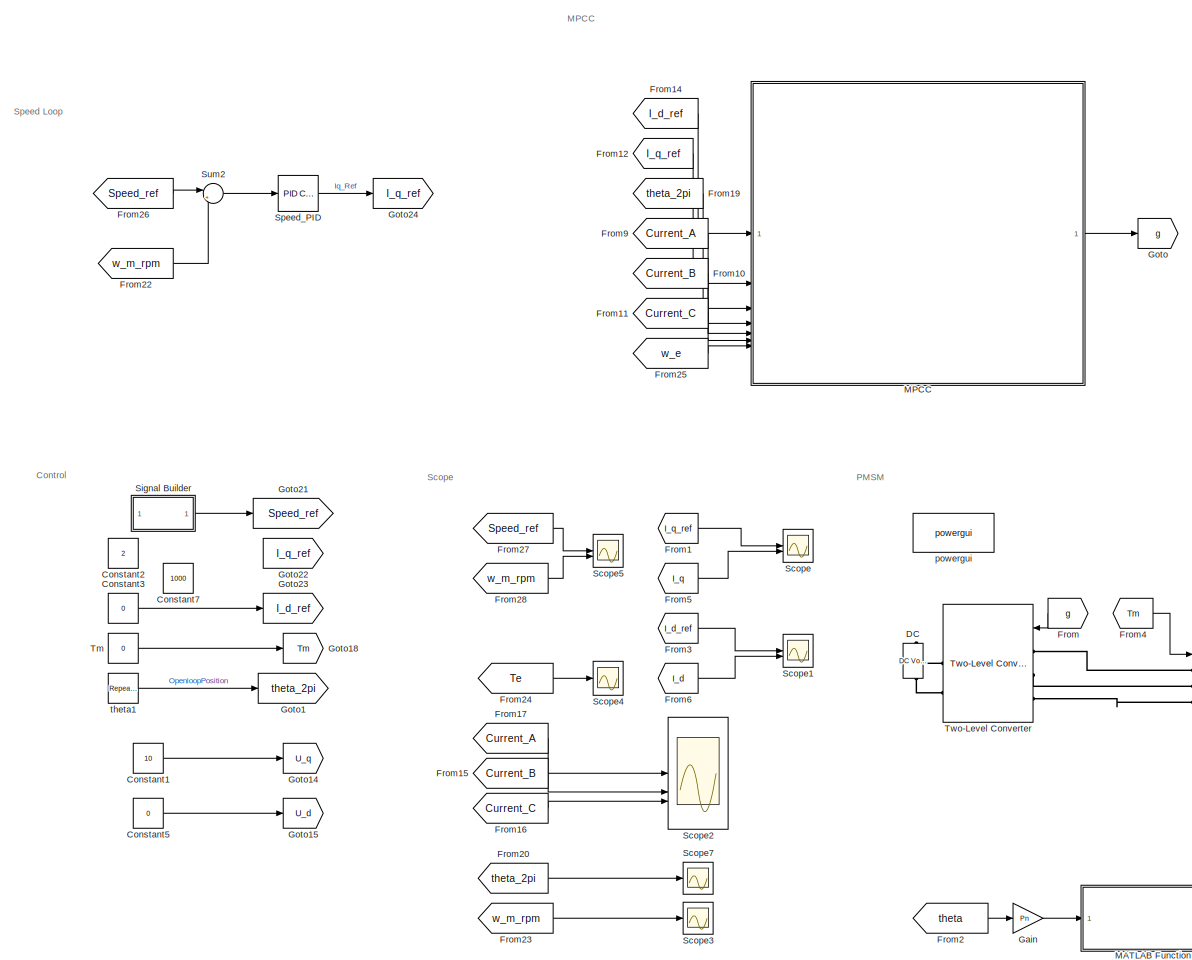
[diagram: root canvas - part 1/2, left side, full height]
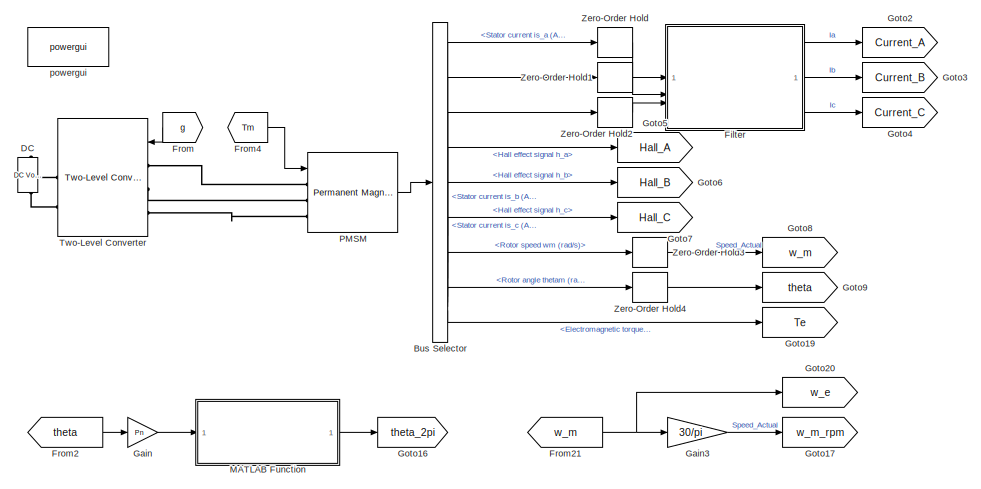
[diagram: root canvas - part 2/2, bottom right region]
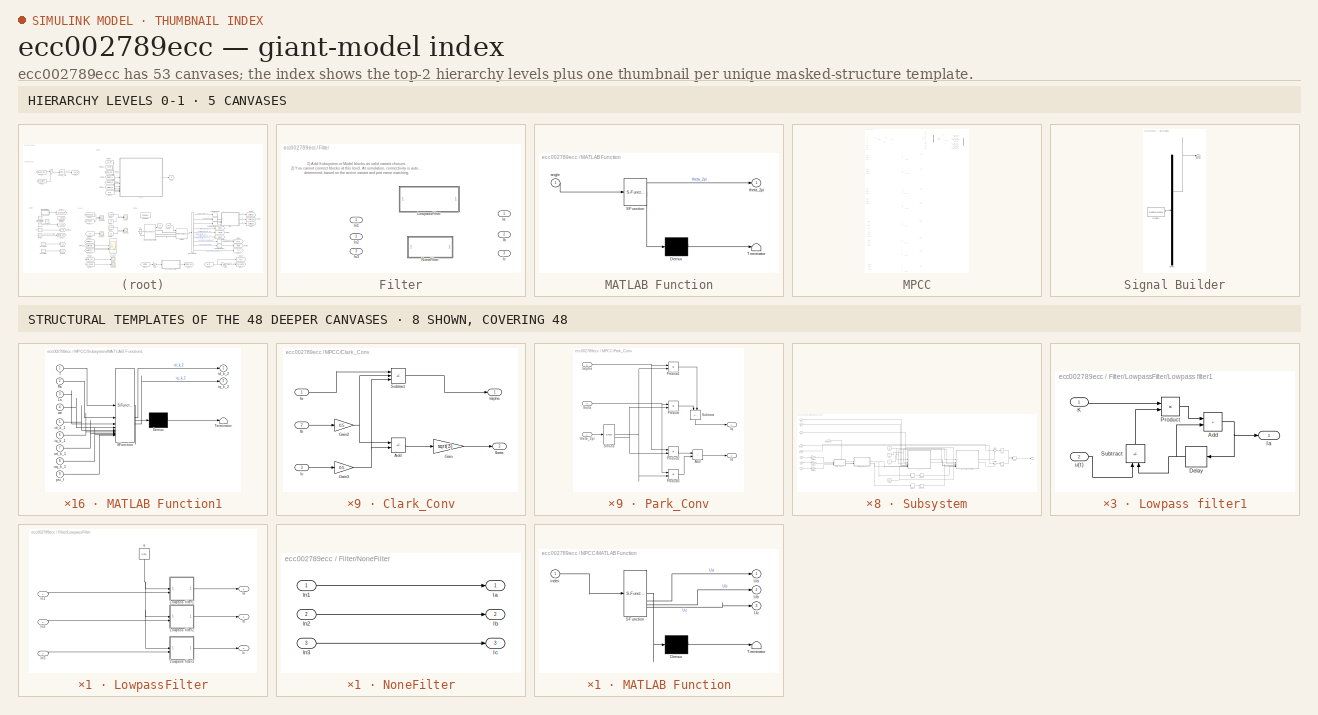
[diagram: thumbnail index - top-2 hierarchy levels (5 canvases) + 8 structural-template representatives of the remaining 48 canvases]
MODEL slx_ecc002789ecc
KIND model
CONFIG AbsTol = auto
CONFIG EnableMultiTasking = off
CONFIG FixedStep = 1e-6
CONFIG MaxStep = auto
CONFIG MinStep = auto
CONFIG RelTol = 1e-3
CONFIG SampleTimeConstraint = Unconstrained
CONFIG SolverName = FixedStepDiscrete
CONFIG StartTime = 0.0
CONFIG StopTime = 0.5
WORKSPACE source: mxarray member
WORKSPACE B = 0
WORKSPACE Current_Filter_On = 0
WORKSPACE F = 10000
WORKSPACE J = 5.8e-05
WORKSPACE Ls = 0.0005125
WORKSPACE Pn = 5
WORKSPACE Rs = 0.1445
WORKSPACE T = 0.0001
WORKSPACE T_deadband = 3e-06
WORKSPACE Ts = 5e-05
WORKSPACE Vdc = 60
WORKSPACE psi_f = 0.0113
WORKSPACE speed_ki = 1.2
WORKSPACE speed_kp = 0.7
BLOCK [BusSelector] Bus Selector
  OutputSignals = Stator current is_a (A),Stator current is_b (A),Stator current is_c (A),Hall effect signal h_a,Hall effect signal h_b,Hall effect signal h_c,Rotor speed wm (rad/s),Rotor angle thetam (rad),Electromagnetic torque Te (N*m)
BLOCK [Constant] Constant1
  Commented = on
  Value = 10
BLOCK [Constant] Constant2
  Commented = on
  Value = 2
BLOCK [Constant] Constant3
  Value = 0
BLOCK [Constant] Constant5
  Commented = on
  Value = 0
BLOCK [Constant] Constant7
  Value = 1000
BLOCK [Reference] DC  REF=spsDCVoltageSourceLib/DC Voltage Source
  NameLocation = right
  SourceBlock = spsDCVoltageSourceLib/DC Voltage Source
  SourceType = DC Voltage Source
BLOCK [SubSystem] Filter
  Variant = on
BLOCK [Outport] Filter/Ia
BLOCK [Outport] Filter/Ib
  Port = 2
BLOCK [Outport] Filter/Ic
  Port = 3
BLOCK [SubSystem] Filter/LowpassFilter
  VariantControl = Current_Filter_On==1
BLOCK [Outport] Filter/LowpassFilter/Ia
BLOCK [Outport] Filter/LowpassFilter/Ib
  Port = 2
BLOCK [Outport] Filter/LowpassFilter/Ic
  Port = 3
BLOCK [SubSystem] Filter/LowpassFilter/Lowpass filter1
BLOCK [Sum] Filter/LowpassFilter/Lowpass filter1/Add
  IconShape = rectangular
BLOCK [Delay] Filter/LowpassFilter/Lowpass filter1/Delay
  DelayLength = 1
  InputPortMap = u0
BLOCK [Outport] Filter/LowpassFilter/Lowpass filter1/Ia
BLOCK [Inport] Filter/LowpassFilter/Lowpass filter1/K
BLOCK [Product] Filter/LowpassFilter/Lowpass filter1/Product
BLOCK [Sum] Filter/LowpassFilter/Lowpass filter1/Subtract
  IconShape = rectangular
  Inputs = +-
  NameLocation = left
BLOCK [Inport] Filter/LowpassFilter/Lowpass filter1/u(t)
  Port = 2
BLOCK [SubSystem] Filter/LowpassFilter/Lowpass filter2
BLOCK [Sum] Filter/LowpassFilter/Lowpass filter2/Add
  IconShape = rectangular
BLOCK [Delay] Filter/LowpassFilter/Lowpass filter2/Delay
  DelayLength = 1
  InputPortMap = u0
BLOCK [Outport] Filter/LowpassFilter/Lowpass filter2/Ib
BLOCK [Inport] Filter/LowpassFilter/Lowpass filter2/K
BLOCK [Product] Filter/LowpassFilter/Lowpass filter2/Product
BLOCK [Sum] Filter/LowpassFilter/Lowpass filter2/Subtract
  IconShape = rectangular
  Inputs = +-
  NameLocation = left
BLOCK [Inport] Filter/LowpassFilter/Lowpass filter2/u(t)
  Port = 2
BLOCK [SubSystem] Filter/LowpassFilter/Lowpass filter3
BLOCK [Sum] Filter/LowpassFilter/Lowpass filter3/Add
  IconShape = rectangular
BLOCK [Delay] Filter/LowpassFilter/Lowpass filter3/Delay
  DelayLength = 1
  InputPortMap = u0
BLOCK [Outport] Filter/LowpassFilter/Lowpass filter3/Ic
BLOCK [Inport] Filter/LowpassFilter/Lowpass filter3/K
BLOCK [Product] Filter/LowpassFilter/Lowpass filter3/Product
BLOCK [Sum] Filter/LowpassFilter/Lowpass filter3/Subtract
  IconShape = rectangular
  Inputs = +-
  NameLocation = left
BLOCK [Inport] Filter/LowpassFilter/Lowpass filter3/u(t)
  Port = 2
BLOCK [Constant] Filter/LowpassFilter/a
  NameLocation = left
  Value = 0.001
BLOCK [Inport] Filter/LowpassFilter/ln1
BLOCK [Inport] Filter/LowpassFilter/ln2
  Port = 2
BLOCK [Inport] Filter/LowpassFilter/ln3
  Port = 3
BLOCK [SubSystem] Filter/NoneFilter
  VariantControl = Current_Filter_On==0
BLOCK [Outport] Filter/NoneFilter/Ia
BLOCK [Outport] Filter/NoneFilter/Ib
  Port = 2
BLOCK [Outport] Filter/NoneFilter/Ic
  Port = 3
BLOCK [Inport] Filter/NoneFilter/ln1
BLOCK [Inport] Filter/NoneFilter/ln2
  Port = 2
BLOCK [Inport] Filter/NoneFilter/ln3
  Port = 3
BLOCK [Inport] Filter/ln1
BLOCK [Inport] Filter/ln2
  Port = 2
BLOCK [Inport] Filter/ln3
  Port = 3
BLOCK [From] From
  GotoTag = g
BLOCK [From] From1
  GotoTag = I_q_ref
BLOCK [From] From10
  GotoTag = Current_B
BLOCK [From] From11
  GotoTag = Current_C
BLOCK [From] From12
  GotoTag = I_q_ref
BLOCK [From] From14
  GotoTag = I_d_ref
BLOCK [From] From15
  GotoTag = Current_B
BLOCK [From] From16
  GotoTag = Current_C
BLOCK [From] From17
  GotoTag = Current_A
BLOCK [From] From19
  GotoTag = theta_2pi
BLOCK [From] From2
  GotoTag = theta
BLOCK [From] From20
  GotoTag = theta_2pi
BLOCK [From] From21
  GotoTag = w_m
BLOCK [From] From22
  GotoTag = w_m_rpm
BLOCK [From] From23
  GotoTag = w_m_rpm
BLOCK [From] From24
  GotoTag = Te
BLOCK [From] From25
  GotoTag = w_e
BLOCK [From] From26
  GotoTag = Speed_ref
BLOCK [From] From27
  GotoTag = Speed_ref
BLOCK [From] From28
  GotoTag = w_m_rpm
BLOCK [From] From3
  GotoTag = I_d_ref
BLOCK [From] From4
  GotoTag = Tm
  NameLocation = top
BLOCK [From] From5
  GotoTag = I_q
BLOCK [From] From6
  GotoTag = I_d
BLOCK [From] From9
  GotoTag = Current_A
BLOCK [Gain] Gain
  Gain = Pn
BLOCK [Gain] Gain3
  Gain = 30/pi
  NameLocation = top
BLOCK [Goto] Goto
  GotoTag = g
BLOCK [Goto] Goto1
  Commented = on
  GotoTag = theta_2pi
BLOCK [Goto] Goto14
  Commented = on
  GotoTag = U_q
BLOCK [Goto] Goto15
  Commented = on
  GotoTag = U_d
BLOCK [Goto] Goto16
  GotoTag = theta_2pi
BLOCK [Goto] Goto17
  GotoTag = w_m_rpm
BLOCK [Goto] Goto18
  GotoTag = Tm
BLOCK [Goto] Goto19
  GotoTag = Te
BLOCK [Goto] Goto2
  GotoTag = Current_A
BLOCK [Goto] Goto20
  GotoTag = w_e
BLOCK [Goto] Goto21
  GotoTag = Speed_ref
BLOCK [Goto] Goto22
  Commented = on
  GotoTag = I_q_ref
BLOCK [Goto] Goto23
  GotoTag = I_d_ref
BLOCK [Goto] Goto24
  GotoTag = I_q_ref
BLOCK [Goto] Goto3
  GotoTag = Current_B
BLOCK [Goto] Goto4
  GotoTag = Current_C
BLOCK [Goto] Goto5
  GotoTag = Hall_A
BLOCK [Goto] Goto6
  GotoTag = Hall_B
BLOCK [Goto] Goto7
  GotoTag = Hall_C
BLOCK [Goto] Goto8
  GotoTag = w_m
BLOCK [Goto] Goto9
  GotoTag = theta
BLOCK [SubSystem] MATLAB Function
  ErrorFcn = Stateflow.Translate.translate
  NameLocation = top
  PermitHierarchicalResolution = ExplicitOnly
  SFBlockType = MATLAB Function
  TreatAsAtomicUnit = on
BLOCK [Demux] MATLAB Function/ Demux 
  Outputs = 1
BLOCK [S-Function] MATLAB Function/ SFunction 
  EnableBusSupport = on
  FunctionName = sf_sfun
  PortCounts = [1 2]
  SFcnIsStateOwnerBlock = off
  SFunctionDeploymentMode = off
  Tag = Stateflow S-Function 1
BLOCK [Terminator] MATLAB Function/ Terminator 
BLOCK [Inport] MATLAB Function/angle
BLOCK [Outport] MATLAB Function/theta_2pi
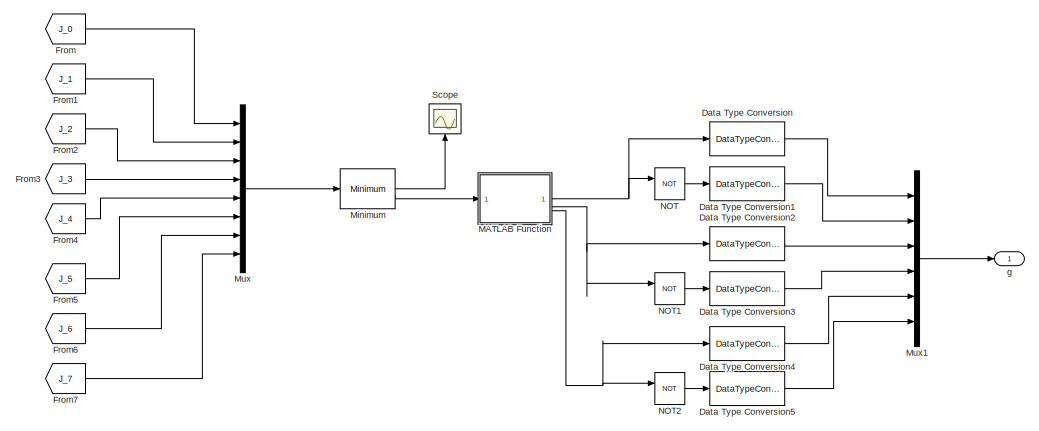
[diagram: MPCC - part 1/6, top right region]
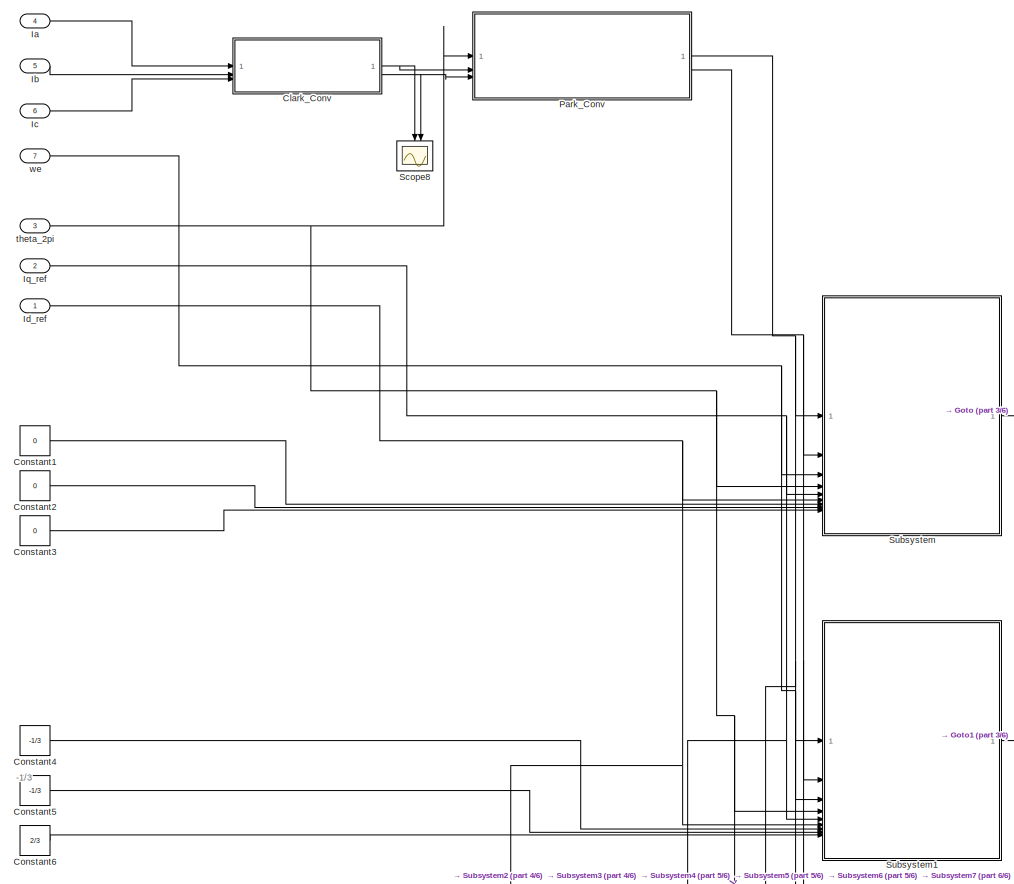
[diagram: MPCC - part 2/6, top left region]
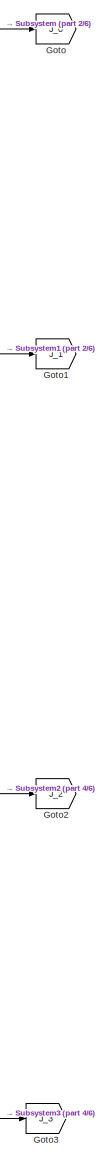
[diagram: MPCC - part 3/6, central region]
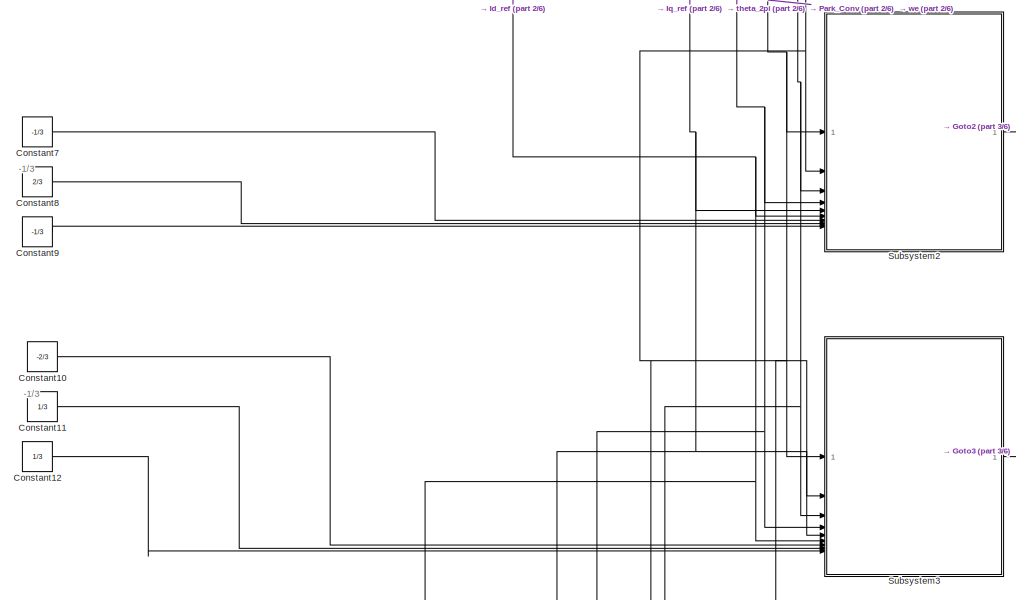
[diagram: MPCC - part 4/6, middle left region]
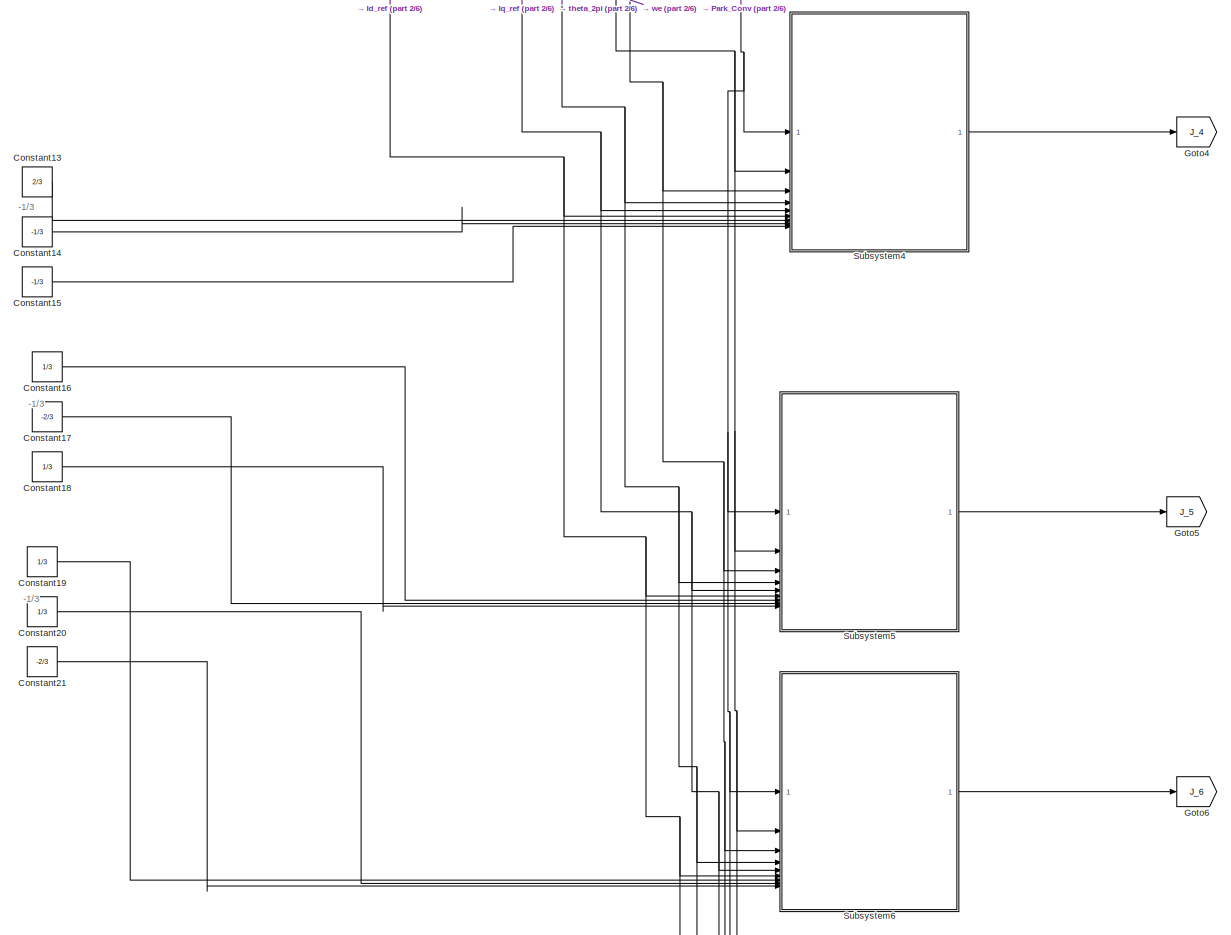
[diagram: MPCC - part 5/6, bottom left region]
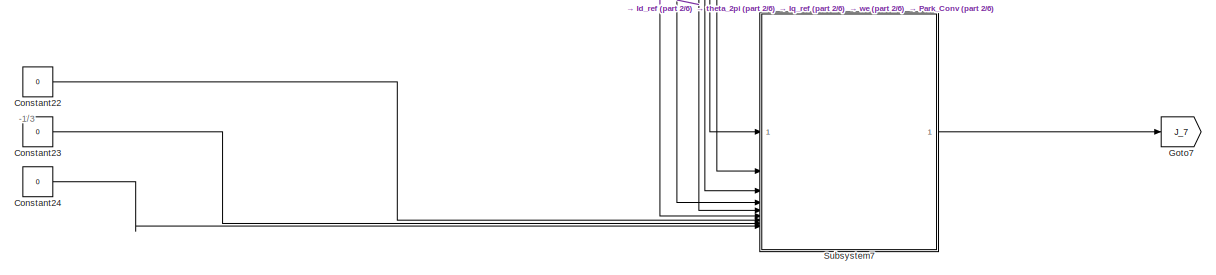
[diagram: MPCC - part 6/6, bottom left region]
BLOCK [SubSystem] MPCC
BLOCK [SubSystem] MPCC/Clark_Conv
BLOCK [Sum] MPCC/Clark_Conv/Add
  IconShape = rectangular
  Inputs = +-
  OutDataTypeStr = double
BLOCK [Gain] MPCC/Clark_Conv/Gain
  Gain = sqrt(3)
  ParamDataTypeStr = double
BLOCK [Gain] MPCC/Clark_Conv/Gain2
  Gain = 0.5
BLOCK [Gain] MPCC/Clark_Conv/Gain3
  Gain = 0.5
BLOCK [Inport] MPCC/Clark_Conv/Ia
BLOCK [Outport] MPCC/Clark_Conv/Ialpha
BLOCK [Inport] MPCC/Clark_Conv/Ib
  Port = 2
BLOCK [Outport] MPCC/Clark_Conv/Ibeta
  Port = 2
BLOCK [Inport] MPCC/Clark_Conv/Ic
  Port = 3
BLOCK [Sum] MPCC/Clark_Conv/Subtract
  IconShape = rectangular
  Inputs = +--
  OutDataTypeStr = double
BLOCK [Constant] MPCC/Constant1
  Value = 0
BLOCK [Constant] MPCC/Constant10
  Value = -2/3
BLOCK [Constant] MPCC/Constant11
  Value = 1/3
BLOCK [Constant] MPCC/Constant12
  Value = 1/3
BLOCK [Constant] MPCC/Constant13
  Value = 2/3
BLOCK [Constant] MPCC/Constant14
  Value = -1/3
BLOCK [Constant] MPCC/Constant15
  Value = -1/3
BLOCK [Constant] MPCC/Constant16
  Value = 1/3
BLOCK [Constant] MPCC/Constant17
  Value = -2/3
BLOCK [Constant] MPCC/Constant18
  Value = 1/3
BLOCK [Constant] MPCC/Constant19
  Value = 1/3
BLOCK [Constant] MPCC/Constant2
  Value = 0
BLOCK [Constant] MPCC/Constant20
  Value = 1/3
BLOCK [Constant] MPCC/Constant21
  Value = -2/3
BLOCK [Constant] MPCC/Constant22
  Value = 0
BLOCK [Constant] MPCC/Constant23
  Value = 0
BLOCK [Constant] MPCC/Constant24
  Value = 0
BLOCK [Constant] MPCC/Constant3
  Value = 0
BLOCK [Constant] MPCC/Constant4
  Value = -1/3
BLOCK [Constant] MPCC/Constant5
  Value = -1/3
BLOCK [Constant] MPCC/Constant6
  Value = 2/3
BLOCK [Constant] MPCC/Constant7
  Value = -1/3
BLOCK [Constant] MPCC/Constant8
  Value = 2/3
BLOCK [Constant] MPCC/Constant9
  Value = -1/3
BLOCK [DataTypeConversion] MPCC/Data Type Conversion
  RndMeth = Floor
  SaturateOnIntegerOverflow = off
BLOCK [DataTypeConversion] MPCC/Data Type Conversion1
  RndMeth = Floor
  SaturateOnIntegerOverflow = off
BLOCK [DataTypeConversion] MPCC/Data Type Conversion2
  RndMeth = Floor
  SaturateOnIntegerOverflow = off
BLOCK [DataTypeConversion] MPCC/Data Type Conversion3
  RndMeth = Floor
  SaturateOnIntegerOverflow = off
BLOCK [DataTypeConversion] MPCC/Data Type Conversion4
  RndMeth = Floor
  SaturateOnIntegerOverflow = off
BLOCK [DataTypeConversion] MPCC/Data Type Conversion5
  RndMeth = Floor
  SaturateOnIntegerOverflow = off
BLOCK [From] MPCC/From
  GotoTag = J_0
BLOCK [From] MPCC/From1
  GotoTag = J_1
BLOCK [From] MPCC/From2
  GotoTag = J_2
BLOCK [From] MPCC/From3
  GotoTag = J_3
BLOCK [From] MPCC/From4
  GotoTag = J_4
BLOCK [From] MPCC/From5
  GotoTag = J_5
BLOCK [From] MPCC/From6
  GotoTag = J_6
BLOCK [From] MPCC/From7
  GotoTag = J_7
BLOCK [Goto] MPCC/Goto
  GotoTag = J_0
BLOCK [Goto] MPCC/Goto1
  GotoTag = J_1
BLOCK [Goto] MPCC/Goto2
  GotoTag = J_2
BLOCK [Goto] MPCC/Goto3
  GotoTag = J_3
BLOCK [Goto] MPCC/Goto4
  GotoTag = J_4
BLOCK [Goto] MPCC/Goto5
  GotoTag = J_5
BLOCK [Goto] MPCC/Goto6
  GotoTag = J_6
BLOCK [Goto] MPCC/Goto7
  GotoTag = J_7
BLOCK [Inport] MPCC/Ia
  Port = 4
BLOCK [Inport] MPCC/Ib
  Port = 5
BLOCK [Inport] MPCC/Ic
  Port = 6
BLOCK [Inport] MPCC/Id_ref
BLOCK [Inport] MPCC/Iq_ref
  Port = 2
BLOCK [SubSystem] MPCC/MATLAB Function
  ErrorFcn = Stateflow.Translate.translate
  LibrarySourceBlock = simulink/User-Defined\nFunctions/MATLAB Function
  PermitHierarchicalResolution = ExplicitOnly
  SFBlockType = MATLAB Function
  TreatAsAtomicUnit = on
BLOCK [Demux] MPCC/MATLAB Function/ Demux 
  Outputs = 1
BLOCK [S-Function] MPCC/MATLAB Function/ SFunction 
  EnableBusSupport = on
  FunctionName = sf_sfun
  PortCounts = [1 4]
  SFcnIsStateOwnerBlock = off
  SFunctionDeploymentMode = off
  Tag = Stateflow S-Function 18
BLOCK [Terminator] MPCC/MATLAB Function/ Terminator 
BLOCK [Outport] MPCC/MATLAB Function/Ua
BLOCK [Outport] MPCC/MATLAB Function/Ub
  Port = 2
BLOCK [Outport] MPCC/MATLAB Function/Uc
  Port = 3
BLOCK [Inport] MPCC/MATLAB Function/index
BLOCK [Reference] MPCC/Minimum  REF=dspstat3/Minimum
  LibrarySourceBlock = dsphdlsupportstat/Minimum
  SourceBlock = dspstat3/Minimum
  SourceType = Minimum
  UserDataPersistent = on
BLOCK [Mux] MPCC/Mux
  DisplayOption = bar
  Inputs = 8
BLOCK [Mux] MPCC/Mux1
  DisplayOption = bar
  Inputs = 6
BLOCK [Logic] MPCC/NOT
  AllPortsSameDT = off
  IconShape = distinctive
  Operator = NOT
  OutDataTypeStr = boolean
BLOCK [Logic] MPCC/NOT1
  AllPortsSameDT = off
  IconShape = distinctive
  Operator = NOT
  OutDataTypeStr = boolean
BLOCK [Logic] MPCC/NOT2
  AllPortsSameDT = off
  IconShape = distinctive
  Operator = NOT
  OutDataTypeStr = boolean
BLOCK [SubSystem] MPCC/Park_Conv
BLOCK [Sum] MPCC/Park_Conv/Add
  IconShape = rectangular
BLOCK [Inport] MPCC/Park_Conv/Ialpha
  Port = 2
BLOCK [Inport] MPCC/Park_Conv/Ibeta
  Port = 3
BLOCK [Outport] MPCC/Park_Conv/Id
  Port = 2
BLOCK [Outport] MPCC/Park_Conv/Iq
BLOCK [Product] MPCC/Park_Conv/Product
BLOCK [Product] MPCC/Park_Conv/Product1
BLOCK [Product] MPCC/Park_Conv/Product2
BLOCK [Product] MPCC/Park_Conv/Product3
BLOCK [Trigonometry] MPCC/Park_Conv/SinCos
  Operator = sincos
BLOCK [Sum] MPCC/Park_Conv/Subtract
  IconShape = rectangular
  Inputs = +-
  NameLocation = right
BLOCK [Inport] MPCC/Park_Conv/theta_2pi
BLOCK [Scope] MPCC/Scope
  Floating = off
  NameLocation = right
  NumInputPorts = 1
  ScopeSpecificationString = Simulink.scopes.TimeScopeBlockCfg('CurrentConfiguration', extmgr.ConfigurationSet(extmgr.Configuration('Core','General UI',true),extmgr.Configuration('Core','Source UI',true),extmgr.Configuration('Sources','WiredSimulink',true,'DataLoggingVariableName','ScopeData1'),extmgr.Configuration('Visuals','Time Domain',true,'SerializedDisplays',{struct('MinYLimReal','-5.36441','MaxYLimReal','62.63565','YLa...<+1400ch>
BLOCK [Scope] MPCC/Scope8
  Floating = off
  NameLocation = right
  NumInputPorts = 2
  ScopeSpecificationString = Simulink.scopes.TimeScopeBlockCfg('CurrentConfiguration', extmgr.ConfigurationSet(extmgr.Configuration('Core','General UI',true,'FigureColor',[1 1 1]),extmgr.Configuration('Core','Source UI',true),extmgr.Configuration('Sources','WiredSimulink',true,'DataLoggingVariableName','ScopeData7'),extmgr.Configuration('Visuals','Time Domain',true,'SerializedDisplays',{struct('MinYLimReal','-0.01076','MaxYLi...<+1786ch>
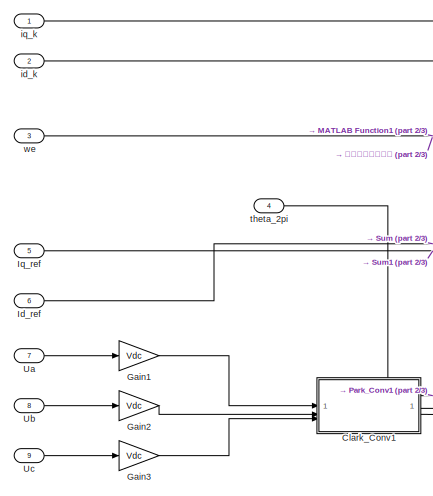
[diagram: MPCC/Subsystem - part 1/3, middle left region]
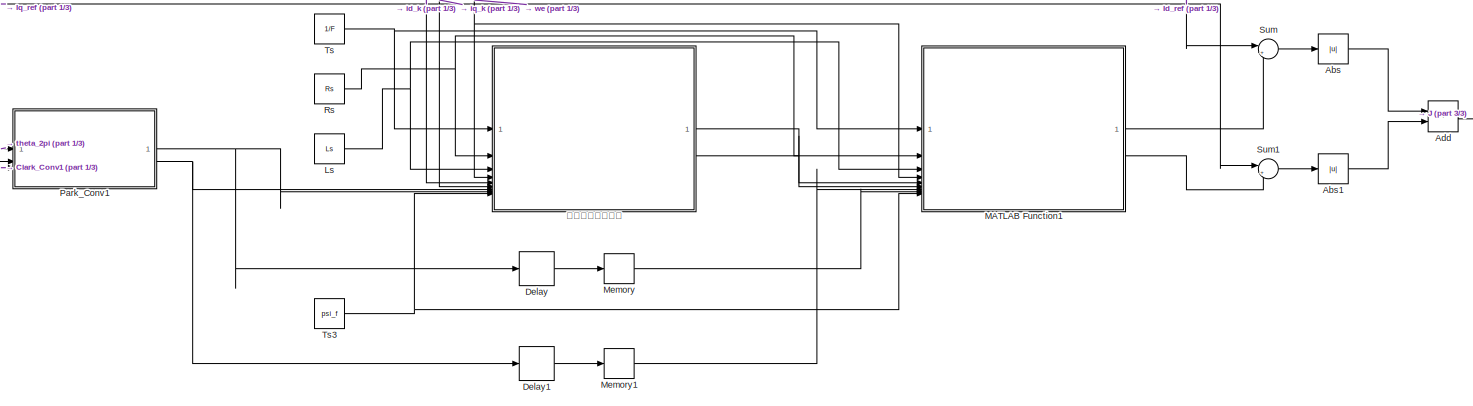
[diagram: MPCC/Subsystem - part 2/3, bottom center region]
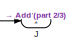
[diagram: MPCC/Subsystem - part 3/3, middle right region]
BLOCK [SubSystem] MPCC/Subsystem
BLOCK [Abs] MPCC/Subsystem/Abs
  SaturateOnIntegerOverflow = off
BLOCK [Abs] MPCC/Subsystem/Abs1
  SaturateOnIntegerOverflow = off
BLOCK [Sum] MPCC/Subsystem/Add
  IconShape = rectangular
BLOCK [SubSystem] MPCC/Subsystem/Clark_Conv1
BLOCK [Sum] MPCC/Subsystem/Clark_Conv1/Add
  IconShape = rectangular
  Inputs = +-
  OutDataTypeStr = double
BLOCK [Gain] MPCC/Subsystem/Clark_Conv1/Gain
  Gain = sqrt(3)
  ParamDataTypeStr = double
BLOCK [Gain] MPCC/Subsystem/Clark_Conv1/Gain2
  Gain = 0.5
BLOCK [Gain] MPCC/Subsystem/Clark_Conv1/Gain3
  Gain = 0.5
BLOCK [Sum] MPCC/Subsystem/Clark_Conv1/Subtract
  IconShape = rectangular
  Inputs = +--
  OutDataTypeStr = double
BLOCK [Inport] MPCC/Subsystem/Clark_Conv1/Ua
BLOCK [Outport] MPCC/Subsystem/Clark_Conv1/Ualpha
BLOCK [Inport] MPCC/Subsystem/Clark_Conv1/Ub
  Port = 2
BLOCK [Outport] MPCC/Subsystem/Clark_Conv1/Ubeta
  Port = 2
BLOCK [Inport] MPCC/Subsystem/Clark_Conv1/Uc
  Port = 3
BLOCK [Delay] MPCC/Subsystem/Delay
  Commented = through
  DelayLength = 1
  InputPortMap = u0
BLOCK [Delay] MPCC/Subsystem/Delay1
  Commented = through
  DelayLength = 1
  InputPortMap = u0
BLOCK [Gain] MPCC/Subsystem/Gain1
  Gain = Vdc
BLOCK [Gain] MPCC/Subsystem/Gain2
  Gain = Vdc
BLOCK [Gain] MPCC/Subsystem/Gain3
  Gain = Vdc
BLOCK [Inport] MPCC/Subsystem/Id_ref
  Port = 6
BLOCK [Inport] MPCC/Subsystem/Iq_ref
  Port = 5
BLOCK [Outport] MPCC/Subsystem/J
BLOCK [Constant] MPCC/Subsystem/Ls
  Value = Ls
BLOCK [SubSystem] MPCC/Subsystem/MATLAB Function1
  ErrorFcn = Stateflow.Translate.translate
  LibrarySourceBlock = simulink/User-Defined\nFunctions/MATLAB Function
  PermitHierarchicalResolution = ExplicitOnly
  SFBlockType = MATLAB Function
  TreatAsAtomicUnit = on
BLOCK [Demux] MPCC/Subsystem/MATLAB Function1/ Demux 
  Outputs = 1
BLOCK [S-Function] MPCC/Subsystem/MATLAB Function1/ SFunction 
  EnableBusSupport = on
  FunctionName = sf_sfun
  PortCounts = [9 3]
  SFcnIsStateOwnerBlock = off
  SFunctionDeploymentMode = off
  Tag = Stateflow S-Function 3
BLOCK [Terminator] MPCC/Subsystem/MATLAB Function1/ Terminator 
BLOCK [Inport] MPCC/Subsystem/MATLAB Function1/Ls
  Port = 3
BLOCK [Inport] MPCC/Subsystem/MATLAB Function1/Rs
  Port = 2
BLOCK [Inport] MPCC/Subsystem/MATLAB Function1/T
BLOCK [Inport] MPCC/Subsystem/MATLAB Function1/id_k_1
  Port = 5
BLOCK [Outport] MPCC/Subsystem/MATLAB Function1/id_k_2
BLOCK [Inport] MPCC/Subsystem/MATLAB Function1/iq_k_1
  Port = 6
BLOCK [Outport] MPCC/Subsystem/MATLAB Function1/iq_k_2
  Port = 2
BLOCK [Inport] MPCC/Subsystem/MATLAB Function1/psi_f
  Port = 9
BLOCK [Inport] MPCC/Subsystem/MATLAB Function1/ud_k_1
  Port = 7
BLOCK [Inport] MPCC/Subsystem/MATLAB Function1/uq_k_1
  Port = 8
BLOCK [Inport] MPCC/Subsystem/MATLAB Function1/we
  Port = 4
BLOCK [Memory] MPCC/Subsystem/Memory
BLOCK [Memory] MPCC/Subsystem/Memory1
BLOCK [SubSystem] MPCC/Subsystem/Park_Conv1
BLOCK [Sum] MPCC/Subsystem/Park_Conv1/Add
  IconShape = rectangular
BLOCK [Product] MPCC/Subsystem/Park_Conv1/Product
BLOCK [Product] MPCC/Subsystem/Park_Conv1/Product1
BLOCK [Product] MPCC/Subsystem/Park_Conv1/Product2
BLOCK [Product] MPCC/Subsystem/Park_Conv1/Product3
BLOCK [Trigonometry] MPCC/Subsystem/Park_Conv1/SinCos
  Operator = sincos
BLOCK [Sum] MPCC/Subsystem/Park_Conv1/Subtract
  IconShape = rectangular
  Inputs = +-
  NameLocation = right
BLOCK [Inport] MPCC/Subsystem/Park_Conv1/Ualpha
  Port = 2
BLOCK [Inport] MPCC/Subsystem/Park_Conv1/Ubeta
  Port = 3
BLOCK [Outport] MPCC/Subsystem/Park_Conv1/Ud
  Port = 2
BLOCK [Outport] MPCC/Subsystem/Park_Conv1/Uq
BLOCK [Inport] MPCC/Subsystem/Park_Conv1/theta_2pi
BLOCK [Constant] MPCC/Subsystem/Rs
  Value = Rs
BLOCK [Sum] MPCC/Subsystem/Sum
  Inputs = |+-
BLOCK [Sum] MPCC/Subsystem/Sum1
  Inputs = |+-
BLOCK [Constant] MPCC/Subsystem/Ts
  Value = 1/F
BLOCK [Constant] MPCC/Subsystem/Ts3
  Value = psi_f
BLOCK [Inport] MPCC/Subsystem/Ua
  Port = 7
BLOCK [Inport] MPCC/Subsystem/Ub
  Port = 8
BLOCK [Inport] MPCC/Subsystem/Uc
  Port = 9
BLOCK [Inport] MPCC/Subsystem/id_k
  Port = 2
BLOCK [Inport] MPCC/Subsystem/iq_k
BLOCK [Inport] MPCC/Subsystem/theta_2pi
  Port = 4
BLOCK [Inport] MPCC/Subsystem/we
  Port = 3
BLOCK [SubSystem] MPCC/Subsystem/一拍延时补偿电流
  ErrorFcn = Stateflow.Translate.translate
  LibrarySourceBlock = simulink/User-Defined\nFunctions/MATLAB Function
  PermitHierarchicalResolution = ExplicitOnly
  SFBlockType = MATLAB Function
  TreatAsAtomicUnit = on
BLOCK [Demux] MPCC/Subsystem/一拍延时补偿电流/ Demux 
  Outputs = 1
BLOCK [S-Function] MPCC/Subsystem/一拍延时补偿电流/ SFunction 
  EnableBusSupport = on
  FunctionName = sf_sfun
  PortCounts = [9 3]
  SFcnIsStateOwnerBlock = off
  SFunctionDeploymentMode = off
  Tag = Stateflow S-Function 2
BLOCK [Terminator] MPCC/Subsystem/一拍延时补偿电流/ Terminator 
BLOCK [Inport] MPCC/Subsystem/一拍延时补偿电流/Ls
  Port = 3
BLOCK [Inport] MPCC/Subsystem/一拍延时补偿电流/Rs
  Port = 2
BLOCK [Inport] MPCC/Subsystem/一拍延时补偿电流/T
BLOCK [Inport] MPCC/Subsystem/一拍延时补偿电流/id_k
  Port = 5
BLOCK [Outport] MPCC/Subsystem/一拍延时补偿电流/id_k_1
BLOCK [Inport] MPCC/Subsystem/一拍延时补偿电流/iq_k
  Port = 6
BLOCK [Outport] MPCC/Subsystem/一拍延时补偿电流/iq_k_1
  Port = 2
BLOCK [Inport] MPCC/Subsystem/一拍延时补偿电流/psi_f
  Port = 9
BLOCK [Inport] MPCC/Subsystem/一拍延时补偿电流/ud_k
  Port = 7
BLOCK [Inport] MPCC/Subsystem/一拍延时补偿电流/uq_k
  Port = 8
BLOCK [Inport] MPCC/Subsystem/一拍延时补偿电流/we
  Port = 4
BLOCK [SubSystem] MPCC/Subsystem1
BLOCK [Abs] MPCC/Subsystem1/Abs
  SaturateOnIntegerOverflow = off
BLOCK [Abs] MPCC/Subsystem1/Abs1
  SaturateOnIntegerOverflow = off
BLOCK [Sum] MPCC/Subsystem1/Add
  IconShape = rectangular
BLOCK [SubSystem] MPCC/Subsystem1/Clark_Conv1
BLOCK [Sum] MPCC/Subsystem1/Clark_Conv1/Add
  IconShape = rectangular
  Inputs = +-
  OutDataTypeStr = double
BLOCK [Gain] MPCC/Subsystem1/Clark_Conv1/Gain
  Gain = sqrt(3)
  ParamDataTypeStr = double
BLOCK [Gain] MPCC/Subsystem1/Clark_Conv1/Gain2
  Gain = 0.5
BLOCK [Gain] MPCC/Subsystem1/Clark_Conv1/Gain3
  Gain = 0.5
BLOCK [Sum] MPCC/Subsystem1/Clark_Conv1/Subtract
  IconShape = rectangular
  Inputs = +--
  OutDataTypeStr = double
BLOCK [Inport] MPCC/Subsystem1/Clark_Conv1/Ua
BLOCK [Outport] MPCC/Subsystem1/Clark_Conv1/Ualpha
BLOCK [Inport] MPCC/Subsystem1/Clark_Conv1/Ub
  Port = 2
BLOCK [Outport] MPCC/Subsystem1/Clark_Conv1/Ubeta
  Port = 2
BLOCK [Inport] MPCC/Subsystem1/Clark_Conv1/Uc
  Port = 3
BLOCK [Delay] MPCC/Subsystem1/Delay
  Commented = through
  DelayLength = 1
  InputPortMap = u0
BLOCK [Delay] MPCC/Subsystem1/Delay1
  Commented = through
  DelayLength = 1
  InputPortMap = u0
BLOCK [Gain] MPCC/Subsystem1/Gain1
  Gain = Vdc
BLOCK [Gain] MPCC/Subsystem1/Gain2
  Gain = Vdc
BLOCK [Gain] MPCC/Subsystem1/Gain3
  Gain = Vdc
BLOCK [Inport] MPCC/Subsystem1/Id_ref
  Port = 6
BLOCK [Inport] MPCC/Subsystem1/Iq_ref
  Port = 5
BLOCK [Outport] MPCC/Subsystem1/J
BLOCK [Constant] MPCC/Subsystem1/Ls
  Value = Ls
BLOCK [SubSystem] MPCC/Subsystem1/MATLAB Function
  ErrorFcn = Stateflow.Translate.translate
  LibrarySourceBlock = simulink/User-Defined\nFunctions/MATLAB Function
  PermitHierarchicalResolution = ExplicitOnly
  SFBlockType = MATLAB Function
  TreatAsAtomicUnit = on
BLOCK [Demux] MPCC/Subsystem1/MATLAB Function/ Demux 
  Outputs = 1
BLOCK [S-Function] MPCC/Subsystem1/MATLAB Function/ SFunction 
  EnableBusSupport = on
  FunctionName = sf_sfun
  PortCounts = [9 3]
  SFcnIsStateOwnerBlock = off
  SFunctionDeploymentMode = off
  Tag = Stateflow S-Function 4
BLOCK [Terminator] MPCC/Subsystem1/MATLAB Function/ Terminator 
BLOCK [Inport] MPCC/Subsystem1/MATLAB Function/Ls
  Port = 3
BLOCK [Inport] MPCC/Subsystem1/MATLAB Function/Rs
  Port = 2
BLOCK [Inport] MPCC/Subsystem1/MATLAB Function/T
BLOCK [Inport] MPCC/Subsystem1/MATLAB Function/id_k
  Port = 5
BLOCK [Outport] MPCC/Subsystem1/MATLAB Function/id_k_1
BLOCK [Inport] MPCC/Subsystem1/MATLAB Function/iq_k
  Port = 6
BLOCK [Outport] MPCC/Subsystem1/MATLAB Function/iq_k_1
  Port = 2
BLOCK [Inport] MPCC/Subsystem1/MATLAB Function/psi_f
  Port = 9
BLOCK [Inport] MPCC/Subsystem1/MATLAB Function/ud_k
  Port = 7
BLOCK [Inport] MPCC/Subsystem1/MATLAB Function/uq_k
  Port = 8
BLOCK [Inport] MPCC/Subsystem1/MATLAB Function/we
  Port = 4
BLOCK [SubSystem] MPCC/Subsystem1/MATLAB Function1
  ErrorFcn = Stateflow.Translate.translate
  LibrarySourceBlock = simulink/User-Defined\nFunctions/MATLAB Function
  PermitHierarchicalResolution = ExplicitOnly
  SFBlockType = MATLAB Function
  TreatAsAtomicUnit = on
BLOCK [Demux] MPCC/Subsystem1/MATLAB Function1/ Demux 
  Outputs = 1
BLOCK [S-Function] MPCC/Subsystem1/MATLAB Function1/ SFunction 
  EnableBusSupport = on
  FunctionName = sf_sfun
  PortCounts = [9 3]
  SFcnIsStateOwnerBlock = off
  SFunctionDeploymentMode = off
  Tag = Stateflow S-Function 5
BLOCK [Terminator] MPCC/Subsystem1/MATLAB Function1/ Terminator 
BLOCK [Inport] MPCC/Subsystem1/MATLAB Function1/Ls
  Port = 3
BLOCK [Inport] MPCC/Subsystem1/MATLAB Function1/Rs
  Port = 2
BLOCK [Inport] MPCC/Subsystem1/MATLAB Function1/T
BLOCK [Inport] MPCC/Subsystem1/MATLAB Function1/id_k_1
  Port = 5
BLOCK [Outport] MPCC/Subsystem1/MATLAB Function1/id_k_2
BLOCK [Inport] MPCC/Subsystem1/MATLAB Function1/iq_k_1
  Port = 6
BLOCK [Outport] MPCC/Subsystem1/MATLAB Function1/iq_k_2
  Port = 2
BLOCK [Inport] MPCC/Subsystem1/MATLAB Function1/psi_f
  Port = 9
BLOCK [Inport] MPCC/Subsystem1/MATLAB Function1/ud_k_1
  Port = 7
BLOCK [Inport] MPCC/Subsystem1/MATLAB Function1/uq_k_1
  Port = 8
BLOCK [Inport] MPCC/Subsystem1/MATLAB Function1/we
  Port = 4
BLOCK [Memory] MPCC/Subsystem1/Memory1
BLOCK [Memory] MPCC/Subsystem1/Memory2
BLOCK [SubSystem] MPCC/Subsystem1/Park_Conv1
BLOCK [Sum] MPCC/Subsystem1/Park_Conv1/Add
  IconShape = rectangular
BLOCK [Product] MPCC/Subsystem1/Park_Conv1/Product
BLOCK [Product] MPCC/Subsystem1/Park_Conv1/Product1
BLOCK [Product] MPCC/Subsystem1/Park_Conv1/Product2
BLOCK [Product] MPCC/Subsystem1/Park_Conv1/Product3
BLOCK [Trigonometry] MPCC/Subsystem1/Park_Conv1/SinCos
  Operator = sincos
BLOCK [Sum] MPCC/Subsystem1/Park_Conv1/Subtract
  IconShape = rectangular
  Inputs = +-
  NameLocation = right
BLOCK [Inport] MPCC/Subsystem1/Park_Conv1/Ualpha
  Port = 2
BLOCK [Inport] MPCC/Subsystem1/Park_Conv1/Ubeta
  Port = 3
BLOCK [Outport] MPCC/Subsystem1/Park_Conv1/Ud
  Port = 2
BLOCK [Outport] MPCC/Subsystem1/Park_Conv1/Uq
BLOCK [Inport] MPCC/Subsystem1/Park_Conv1/theta_2pi
BLOCK [Constant] MPCC/Subsystem1/Rs
  Value = Rs
BLOCK [Sum] MPCC/Subsystem1/Sum
  Inputs = |+-
BLOCK [Sum] MPCC/Subsystem1/Sum1
  Inputs = |+-
BLOCK [Constant] MPCC/Subsystem1/Ts
  Value = 1/F
BLOCK [Constant] MPCC/Subsystem1/Ts3
  Value = psi_f
BLOCK [Inport] MPCC/Subsystem1/Ua
  Port = 7
BLOCK [Inport] MPCC/Subsystem1/Ub
  Port = 8
BLOCK [Inport] MPCC/Subsystem1/Uc
  Port = 9
BLOCK [Inport] MPCC/Subsystem1/id_k
  Port = 2
BLOCK [Inport] MPCC/Subsystem1/iq_k
BLOCK [Inport] MPCC/Subsystem1/theta_2pi
  Port = 4
BLOCK [Inport] MPCC/Subsystem1/we
  Port = 3
BLOCK [SubSystem] MPCC/Subsystem2
BLOCK [Abs] MPCC/Subsystem2/Abs
  SaturateOnIntegerOverflow = off
BLOCK [Abs] MPCC/Subsystem2/Abs1
  SaturateOnIntegerOverflow = off
BLOCK [Sum] MPCC/Subsystem2/Add
  IconShape = rectangular
BLOCK [SubSystem] MPCC/Subsystem2/Clark_Conv1
BLOCK [Sum] MPCC/Subsystem2/Clark_Conv1/Add
  IconShape = rectangular
  Inputs = +-
  OutDataTypeStr = double
BLOCK [Gain] MPCC/Subsystem2/Clark_Conv1/Gain
  Gain = sqrt(3)
  ParamDataTypeStr = double
BLOCK [Gain] MPCC/Subsystem2/Clark_Conv1/Gain2
  Gain = 0.5
BLOCK [Gain] MPCC/Subsystem2/Clark_Conv1/Gain3
  Gain = 0.5
BLOCK [Sum] MPCC/Subsystem2/Clark_Conv1/Subtract
  IconShape = rectangular
  Inputs = +--
  OutDataTypeStr = double
BLOCK [Inport] MPCC/Subsystem2/Clark_Conv1/Ua
BLOCK [Outport] MPCC/Subsystem2/Clark_Conv1/Ualpha
BLOCK [Inport] MPCC/Subsystem2/Clark_Conv1/Ub
  Port = 2
BLOCK [Outport] MPCC/Subsystem2/Clark_Conv1/Ubeta
  Port = 2
BLOCK [Inport] MPCC/Subsystem2/Clark_Conv1/Uc
  Port = 3
BLOCK [Delay] MPCC/Subsystem2/Delay
  Commented = through
  DelayLength = 1
  InputPortMap = u0
BLOCK [Delay] MPCC/Subsystem2/Delay1
  Commented = through
  DelayLength = 1
  InputPortMap = u0
BLOCK [Gain] MPCC/Subsystem2/Gain1
  Gain = Vdc
BLOCK [Gain] MPCC/Subsystem2/Gain2
  Gain = Vdc
BLOCK [Gain] MPCC/Subsystem2/Gain3
  Gain = Vdc
BLOCK [Inport] MPCC/Subsystem2/Id_ref
  Port = 6
BLOCK [Inport] MPCC/Subsystem2/Iq_ref
  Port = 5
BLOCK [Outport] MPCC/Subsystem2/J
BLOCK [Constant] MPCC/Subsystem2/Ls
  Value = Ls
BLOCK [SubSystem] MPCC/Subsystem2/MATLAB Function
  ErrorFcn = Stateflow.Translate.translate
  LibrarySourceBlock = simulink/User-Defined\nFunctions/MATLAB Function
  PermitHierarchicalResolution = ExplicitOnly
  SFBlockType = MATLAB Function
  TreatAsAtomicUnit = on
BLOCK [Demux] MPCC/Subsystem2/MATLAB Function/ Demux 
  Outputs = 1
BLOCK [S-Function] MPCC/Subsystem2/MATLAB Function/ SFunction 
  EnableBusSupport = on
  FunctionName = sf_sfun
  PortCounts = [9 3]
  SFcnIsStateOwnerBlock = off
  SFunctionDeploymentMode = off
  Tag = Stateflow S-Function 6
BLOCK [Terminator] MPCC/Subsystem2/MATLAB Function/ Terminator 
BLOCK [Inport] MPCC/Subsystem2/MATLAB Function/Ls
  Port = 3
BLOCK [Inport] MPCC/Subsystem2/MATLAB Function/Rs
  Port = 2
BLOCK [Inport] MPCC/Subsystem2/MATLAB Function/T
BLOCK [Inport] MPCC/Subsystem2/MATLAB Function/id_k
  Port = 5
BLOCK [Outport] MPCC/Subsystem2/MATLAB Function/id_k_1
BLOCK [Inport] MPCC/Subsystem2/MATLAB Function/iq_k
  Port = 6
BLOCK [Outport] MPCC/Subsystem2/MATLAB Function/iq_k_1
  Port = 2
BLOCK [Inport] MPCC/Subsystem2/MATLAB Function/psi_f
  Port = 9
BLOCK [Inport] MPCC/Subsystem2/MATLAB Function/ud_k
  Port = 7
BLOCK [Inport] MPCC/Subsystem2/MATLAB Function/uq_k
  Port = 8
BLOCK [Inport] MPCC/Subsystem2/MATLAB Function/we
  Port = 4
BLOCK [SubSystem] MPCC/Subsystem2/MATLAB Function1
  ErrorFcn = Stateflow.Translate.translate
  LibrarySourceBlock = simulink/User-Defined\nFunctions/MATLAB Function
  PermitHierarchicalResolution = ExplicitOnly
  SFBlockType = MATLAB Function
  TreatAsAtomicUnit = on
BLOCK [Demux] MPCC/Subsystem2/MATLAB Function1/ Demux 
  Outputs = 1
BLOCK [S-Function] MPCC/Subsystem2/MATLAB Function1/ SFunction 
  EnableBusSupport = on
  FunctionName = sf_sfun
  PortCounts = [9 3]
  SFcnIsStateOwnerBlock = off
  SFunctionDeploymentMode = off
  Tag = Stateflow S-Function 7
BLOCK [Terminator] MPCC/Subsystem2/MATLAB Function1/ Terminator 
BLOCK [Inport] MPCC/Subsystem2/MATLAB Function1/Ls
  Port = 3
BLOCK [Inport] MPCC/Subsystem2/MATLAB Function1/Rs
  Port = 2
BLOCK [Inport] MPCC/Subsystem2/MATLAB Function1/T
BLOCK [Inport] MPCC/Subsystem2/MATLAB Function1/id_k_1
  Port = 5
BLOCK [Outport] MPCC/Subsystem2/MATLAB Function1/id_k_2
BLOCK [Inport] MPCC/Subsystem2/MATLAB Function1/iq_k_1
  Port = 6
BLOCK [Outport] MPCC/Subsystem2/MATLAB Function1/iq_k_2
  Port = 2
BLOCK [Inport] MPCC/Subsystem2/MATLAB Function1/psi_f
  Port = 9
BLOCK [Inport] MPCC/Subsystem2/MATLAB Function1/ud_k_1
  Port = 7
BLOCK [Inport] MPCC/Subsystem2/MATLAB Function1/uq_k_1
  Port = 8
BLOCK [Inport] MPCC/Subsystem2/MATLAB Function1/we
  Port = 4
BLOCK [Memory] MPCC/Subsystem2/Memory1
BLOCK [Memory] MPCC/Subsystem2/Memory2
BLOCK [SubSystem] MPCC/Subsystem2/Park_Conv1
BLOCK [Sum] MPCC/Subsystem2/Park_Conv1/Add
  IconShape = rectangular
BLOCK [Product] MPCC/Subsystem2/Park_Conv1/Product
BLOCK [Product] MPCC/Subsystem2/Park_Conv1/Product1
BLOCK [Product] MPCC/Subsystem2/Park_Conv1/Product2
BLOCK [Product] MPCC/Subsystem2/Park_Conv1/Product3
BLOCK [Trigonometry] MPCC/Subsystem2/Park_Conv1/SinCos
  Operator = sincos
BLOCK [Sum] MPCC/Subsystem2/Park_Conv1/Subtract
  IconShape = rectangular
  Inputs = +-
  NameLocation = right
BLOCK [Inport] MPCC/Subsystem2/Park_Conv1/Ualpha
  Port = 2
BLOCK [Inport] MPCC/Subsystem2/Park_Conv1/Ubeta
  Port = 3
BLOCK [Outport] MPCC/Subsystem2/Park_Conv1/Ud
  Port = 2
BLOCK [Outport] MPCC/Subsystem2/Park_Conv1/Uq
BLOCK [Inport] MPCC/Subsystem2/Park_Conv1/theta_2pi
BLOCK [Constant] MPCC/Subsystem2/Rs
  Value = Rs
BLOCK [Sum] MPCC/Subsystem2/Sum
  Inputs = |+-
BLOCK [Sum] MPCC/Subsystem2/Sum1
  Inputs = |+-
BLOCK [Constant] MPCC/Subsystem2/Ts
  Value = 1/F
BLOCK [Constant] MPCC/Subsystem2/Ts3
  Value = psi_f
BLOCK [Inport] MPCC/Subsystem2/Ua
  Port = 7
BLOCK [Inport] MPCC/Subsystem2/Ub
  Port = 8
BLOCK [Inport] MPCC/Subsystem2/Uc
  Port = 9
BLOCK [Inport] MPCC/Subsystem2/id_k
  Port = 2
BLOCK [Inport] MPCC/Subsystem2/iq_k
BLOCK [Inport] MPCC/Subsystem2/theta_2pi
  Port = 4
BLOCK [Inport] MPCC/Subsystem2/we
  Port = 3
BLOCK [SubSystem] MPCC/Subsystem3
BLOCK [Abs] MPCC/Subsystem3/Abs
  SaturateOnIntegerOverflow = off
BLOCK [Abs] MPCC/Subsystem3/Abs1
  SaturateOnIntegerOverflow = off
BLOCK [Sum] MPCC/Subsystem3/Add
  IconShape = rectangular
BLOCK [SubSystem] MPCC/Subsystem3/Clark_Conv1
BLOCK [Sum] MPCC/Subsystem3/Clark_Conv1/Add
  IconShape = rectangular
  Inputs = +-
  OutDataTypeStr = double
BLOCK [Gain] MPCC/Subsystem3/Clark_Conv1/Gain
  Gain = sqrt(3)
  ParamDataTypeStr = double
BLOCK [Gain] MPCC/Subsystem3/Clark_Conv1/Gain2
  Gain = 0.5
BLOCK [Gain] MPCC/Subsystem3/Clark_Conv1/Gain3
  Gain = 0.5
BLOCK [Sum] MPCC/Subsystem3/Clark_Conv1/Subtract
  IconShape = rectangular
  Inputs = +--
  OutDataTypeStr = double
BLOCK [Inport] MPCC/Subsystem3/Clark_Conv1/Ua
BLOCK [Outport] MPCC/Subsystem3/Clark_Conv1/Ualpha
BLOCK [Inport] MPCC/Subsystem3/Clark_Conv1/Ub
  Port = 2
BLOCK [Outport] MPCC/Subsystem3/Clark_Conv1/Ubeta
  Port = 2
BLOCK [Inport] MPCC/Subsystem3/Clark_Conv1/Uc
  Port = 3
BLOCK [Delay] MPCC/Subsystem3/Delay
  Commented = through
  DelayLength = 1
  InputPortMap = u0
BLOCK [Delay] MPCC/Subsystem3/Delay1
  Commented = through
  DelayLength = 1
  InputPortMap = u0
BLOCK [Gain] MPCC/Subsystem3/Gain1
  Gain = Vdc
BLOCK [Gain] MPCC/Subsystem3/Gain2
  Gain = Vdc
BLOCK [Gain] MPCC/Subsystem3/Gain3
  Gain = Vdc
BLOCK [Inport] MPCC/Subsystem3/Id_ref
  Port = 6
BLOCK [Inport] MPCC/Subsystem3/Iq_ref
  Port = 5
BLOCK [Outport] MPCC/Subsystem3/J
BLOCK [Constant] MPCC/Subsystem3/Ls
  Value = Ls
BLOCK [SubSystem] MPCC/Subsystem3/MATLAB Function
  ErrorFcn = Stateflow.Translate.translate
  LibrarySourceBlock = simulink/User-Defined\nFunctions/MATLAB Function
  PermitHierarchicalResolution = ExplicitOnly
  SFBlockType = MATLAB Function
  TreatAsAtomicUnit = on
BLOCK [Demux] MPCC/Subsystem3/MATLAB Function/ Demux 
  Outputs = 1
BLOCK [S-Function] MPCC/Subsystem3/MATLAB Function/ SFunction 
  EnableBusSupport = on
  FunctionName = sf_sfun
  PortCounts = [9 3]
  SFcnIsStateOwnerBlock = off
  SFunctionDeploymentMode = off
  Tag = Stateflow S-Function 8
BLOCK [Terminator] MPCC/Subsystem3/MATLAB Function/ Terminator 
BLOCK [Inport] MPCC/Subsystem3/MATLAB Function/Ls
  Port = 3
BLOCK [Inport] MPCC/Subsystem3/MATLAB Function/Rs
  Port = 2
BLOCK [Inport] MPCC/Subsystem3/MATLAB Function/T
BLOCK [Inport] MPCC/Subsystem3/MATLAB Function/id_k
  Port = 5
BLOCK [Outport] MPCC/Subsystem3/MATLAB Function/id_k_1
BLOCK [Inport] MPCC/Subsystem3/MATLAB Function/iq_k
  Port = 6
BLOCK [Outport] MPCC/Subsystem3/MATLAB Function/iq_k_1
  Port = 2
BLOCK [Inport] MPCC/Subsystem3/MATLAB Function/psi_f
  Port = 9
BLOCK [Inport] MPCC/Subsystem3/MATLAB Function/ud_k
  Port = 7
BLOCK [Inport] MPCC/Subsystem3/MATLAB Function/uq_k
  Port = 8
BLOCK [Inport] MPCC/Subsystem3/MATLAB Function/we
  Port = 4
BLOCK [SubSystem] MPCC/Subsystem3/MATLAB Function1
  ErrorFcn = Stateflow.Translate.translate
  LibrarySourceBlock = simulink/User-Defined\nFunctions/MATLAB Function
  PermitHierarchicalResolution = ExplicitOnly
  SFBlockType = MATLAB Function
  TreatAsAtomicUnit = on
BLOCK [Demux] MPCC/Subsystem3/MATLAB Function1/ Demux 
  Outputs = 1
BLOCK [S-Function] MPCC/Subsystem3/MATLAB Function1/ SFunction 
  EnableBusSupport = on
  FunctionName = sf_sfun
  PortCounts = [9 3]
  SFcnIsStateOwnerBlock = off
  SFunctionDeploymentMode = off
  Tag = Stateflow S-Function 9
BLOCK [Terminator] MPCC/Subsystem3/MATLAB Function1/ Terminator 
BLOCK [Inport] MPCC/Subsystem3/MATLAB Function1/Ls
  Port = 3
BLOCK [Inport] MPCC/Subsystem3/MATLAB Function1/Rs
  Port = 2
BLOCK [Inport] MPCC/Subsystem3/MATLAB Function1/T
BLOCK [Inport] MPCC/Subsystem3/MATLAB Function1/id_k_1
  Port = 5
BLOCK [Outport] MPCC/Subsystem3/MATLAB Function1/id_k_2
BLOCK [Inport] MPCC/Subsystem3/MATLAB Function1/iq_k_1
  Port = 6
BLOCK [Outport] MPCC/Subsystem3/MATLAB Function1/iq_k_2
  Port = 2
BLOCK [Inport] MPCC/Subsystem3/MATLAB Function1/psi_f
  Port = 9
BLOCK [Inport] MPCC/Subsystem3/MATLAB Function1/ud_k_1
  Port = 7
BLOCK [Inport] MPCC/Subsystem3/MATLAB Function1/uq_k_1
  Port = 8
BLOCK [Inport] MPCC/Subsystem3/MATLAB Function1/we
  Port = 4
BLOCK [Memory] MPCC/Subsystem3/Memory1
BLOCK [Memory] MPCC/Subsystem3/Memory2
BLOCK [SubSystem] MPCC/Subsystem3/Park_Conv1
BLOCK [Sum] MPCC/Subsystem3/Park_Conv1/Add
  IconShape = rectangular
BLOCK [Product] MPCC/Subsystem3/Park_Conv1/Product
BLOCK [Product] MPCC/Subsystem3/Park_Conv1/Product1
BLOCK [Product] MPCC/Subsystem3/Park_Conv1/Product2
BLOCK [Product] MPCC/Subsystem3/Park_Conv1/Product3
BLOCK [Trigonometry] MPCC/Subsystem3/Park_Conv1/SinCos
  Operator = sincos
BLOCK [Sum] MPCC/Subsystem3/Park_Conv1/Subtract
  IconShape = rectangular
  Inputs = +-
  NameLocation = right
BLOCK [Inport] MPCC/Subsystem3/Park_Conv1/Ualpha
  Port = 2
BLOCK [Inport] MPCC/Subsystem3/Park_Conv1/Ubeta
  Port = 3
BLOCK [Outport] MPCC/Subsystem3/Park_Conv1/Ud
  Port = 2
BLOCK [Outport] MPCC/Subsystem3/Park_Conv1/Uq
BLOCK [Inport] MPCC/Subsystem3/Park_Conv1/theta_2pi
BLOCK [Constant] MPCC/Subsystem3/Rs
  Value = Rs
BLOCK [Sum] MPCC/Subsystem3/Sum
  Inputs = |+-
BLOCK [Sum] MPCC/Subsystem3/Sum1
  Inputs = |+-
BLOCK [Constant] MPCC/Subsystem3/Ts
  Value = 1/F
BLOCK [Constant] MPCC/Subsystem3/Ts3
  Value = psi_f
BLOCK [Inport] MPCC/Subsystem3/Ua
  Port = 7
BLOCK [Inport] MPCC/Subsystem3/Ub
  Port = 8
BLOCK [Inport] MPCC/Subsystem3/Uc
  Port = 9
BLOCK [Inport] MPCC/Subsystem3/id_k
  Port = 2
BLOCK [Inport] MPCC/Subsystem3/iq_k
BLOCK [Inport] MPCC/Subsystem3/theta_2pi
  Port = 4
BLOCK [Inport] MPCC/Subsystem3/we
  Port = 3
BLOCK [SubSystem] MPCC/Subsystem4
BLOCK [Abs] MPCC/Subsystem4/Abs
  SaturateOnIntegerOverflow = off
BLOCK [Abs] MPCC/Subsystem4/Abs1
  SaturateOnIntegerOverflow = off
BLOCK [Sum] MPCC/Subsystem4/Add
  IconShape = rectangular
BLOCK [SubSystem] MPCC/Subsystem4/Clark_Conv1
BLOCK [Sum] MPCC/Subsystem4/Clark_Conv1/Add
  IconShape = rectangular
  Inputs = +-
  OutDataTypeStr = double
BLOCK [Gain] MPCC/Subsystem4/Clark_Conv1/Gain
  Gain = sqrt(3)
  ParamDataTypeStr = double
BLOCK [Gain] MPCC/Subsystem4/Clark_Conv1/Gain2
  Gain = 0.5
BLOCK [Gain] MPCC/Subsystem4/Clark_Conv1/Gain3
  Gain = 0.5
BLOCK [Sum] MPCC/Subsystem4/Clark_Conv1/Subtract
  IconShape = rectangular
  Inputs = +--
  OutDataTypeStr = double
BLOCK [Inport] MPCC/Subsystem4/Clark_Conv1/Ua
BLOCK [Outport] MPCC/Subsystem4/Clark_Conv1/Ualpha
BLOCK [Inport] MPCC/Subsystem4/Clark_Conv1/Ub
  Port = 2
BLOCK [Outport] MPCC/Subsystem4/Clark_Conv1/Ubeta
  Port = 2
BLOCK [Inport] MPCC/Subsystem4/Clark_Conv1/Uc
  Port = 3
BLOCK [Delay] MPCC/Subsystem4/Delay
  Commented = through
  DelayLength = 1
  InputPortMap = u0
BLOCK [Delay] MPCC/Subsystem4/Delay1
  Commented = through
  DelayLength = 1
  InputPortMap = u0
BLOCK [Gain] MPCC/Subsystem4/Gain1
  Gain = Vdc
BLOCK [Gain] MPCC/Subsystem4/Gain2
  Gain = Vdc
BLOCK [Gain] MPCC/Subsystem4/Gain3
  Gain = Vdc
BLOCK [Inport] MPCC/Subsystem4/Id_ref
  Port = 6
BLOCK [Inport] MPCC/Subsystem4/Iq_ref
  Port = 5
BLOCK [Outport] MPCC/Subsystem4/J
BLOCK [Constant] MPCC/Subsystem4/Ls
  Value = Ls
BLOCK [SubSystem] MPCC/Subsystem4/MATLAB Function
  ErrorFcn = Stateflow.Translate.translate
  LibrarySourceBlock = simulink/User-Defined\nFunctions/MATLAB Function
  PermitHierarchicalResolution = ExplicitOnly
  SFBlockType = MATLAB Function
  TreatAsAtomicUnit = on
BLOCK [Demux] MPCC/Subsystem4/MATLAB Function/ Demux 
  Outputs = 1
BLOCK [S-Function] MPCC/Subsystem4/MATLAB Function/ SFunction 
  EnableBusSupport = on
  FunctionName = sf_sfun
  PortCounts = [9 3]
  SFcnIsStateOwnerBlock = off
  SFunctionDeploymentMode = off
  Tag = Stateflow S-Function 10
BLOCK [Terminator] MPCC/Subsystem4/MATLAB Function/ Terminator 
BLOCK [Inport] MPCC/Subsystem4/MATLAB Function/Ls
  Port = 3
BLOCK [Inport] MPCC/Subsystem4/MATLAB Function/Rs
  Port = 2
BLOCK [Inport] MPCC/Subsystem4/MATLAB Function/T
BLOCK [Inport] MPCC/Subsystem4/MATLAB Function/id_k
  Port = 5
BLOCK [Outport] MPCC/Subsystem4/MATLAB Function/id_k_1
BLOCK [Inport] MPCC/Subsystem4/MATLAB Function/iq_k
  Port = 6
BLOCK [Outport] MPCC/Subsystem4/MATLAB Function/iq_k_1
  Port = 2
BLOCK [Inport] MPCC/Subsystem4/MATLAB Function/psi_f
  Port = 9
BLOCK [Inport] MPCC/Subsystem4/MATLAB Function/ud_k
  Port = 7
BLOCK [Inport] MPCC/Subsystem4/MATLAB Function/uq_k
  Port = 8
BLOCK [Inport] MPCC/Subsystem4/MATLAB Function/we
  Port = 4
BLOCK [SubSystem] MPCC/Subsystem4/MATLAB Function1
  ErrorFcn = Stateflow.Translate.translate
  LibrarySourceBlock = simulink/User-Defined\nFunctions/MATLAB Function
  PermitHierarchicalResolution = ExplicitOnly
  SFBlockType = MATLAB Function
  TreatAsAtomicUnit = on
BLOCK [Demux] MPCC/Subsystem4/MATLAB Function1/ Demux 
  Outputs = 1
BLOCK [S-Function] MPCC/Subsystem4/MATLAB Function1/ SFunction 
  EnableBusSupport = on
  FunctionName = sf_sfun
  PortCounts = [9 3]
  SFcnIsStateOwnerBlock = off
  SFunctionDeploymentMode = off
  Tag = Stateflow S-Function 11
BLOCK [Terminator] MPCC/Subsystem4/MATLAB Function1/ Terminator 
BLOCK [Inport] MPCC/Subsystem4/MATLAB Function1/Ls
  Port = 3
BLOCK [Inport] MPCC/Subsystem4/MATLAB Function1/Rs
  Port = 2
BLOCK [Inport] MPCC/Subsystem4/MATLAB Function1/T
BLOCK [Inport] MPCC/Subsystem4/MATLAB Function1/id_k_1
  Port = 5
BLOCK [Outport] MPCC/Subsystem4/MATLAB Function1/id_k_2
BLOCK [Inport] MPCC/Subsystem4/MATLAB Function1/iq_k_1
  Port = 6
BLOCK [Outport] MPCC/Subsystem4/MATLAB Function1/iq_k_2
  Port = 2
BLOCK [Inport] MPCC/Subsystem4/MATLAB Function1/psi_f
  Port = 9
BLOCK [Inport] MPCC/Subsystem4/MATLAB Function1/ud_k_1
  Port = 7
BLOCK [Inport] MPCC/Subsystem4/MATLAB Function1/uq_k_1
  Port = 8
BLOCK [Inport] MPCC/Subsystem4/MATLAB Function1/we
  Port = 4
BLOCK [Memory] MPCC/Subsystem4/Memory1
BLOCK [Memory] MPCC/Subsystem4/Memory2
BLOCK [SubSystem] MPCC/Subsystem4/Park_Conv1
BLOCK [Sum] MPCC/Subsystem4/Park_Conv1/Add
  IconShape = rectangular
BLOCK [Product] MPCC/Subsystem4/Park_Conv1/Product
BLOCK [Product] MPCC/Subsystem4/Park_Conv1/Product1
BLOCK [Product] MPCC/Subsystem4/Park_Conv1/Product2
BLOCK [Product] MPCC/Subsystem4/Park_Conv1/Product3
BLOCK [Trigonometry] MPCC/Subsystem4/Park_Conv1/SinCos
  Operator = sincos
BLOCK [Sum] MPCC/Subsystem4/Park_Conv1/Subtract
  IconShape = rectangular
  Inputs = +-
  NameLocation = right
BLOCK [Inport] MPCC/Subsystem4/Park_Conv1/Ualpha
  Port = 2
BLOCK [Inport] MPCC/Subsystem4/Park_Conv1/Ubeta
  Port = 3
BLOCK [Outport] MPCC/Subsystem4/Park_Conv1/Ud
  Port = 2
BLOCK [Outport] MPCC/Subsystem4/Park_Conv1/Uq
BLOCK [Inport] MPCC/Subsystem4/Park_Conv1/theta_2pi
BLOCK [Constant] MPCC/Subsystem4/Rs
  Value = Rs
BLOCK [Sum] MPCC/Subsystem4/Sum
  Inputs = |+-
BLOCK [Sum] MPCC/Subsystem4/Sum1
  Inputs = |+-
BLOCK [Constant] MPCC/Subsystem4/Ts
  Value = 1/F
BLOCK [Constant] MPCC/Subsystem4/Ts3
  Value = psi_f
BLOCK [Inport] MPCC/Subsystem4/Ua
  Port = 7
BLOCK [Inport] MPCC/Subsystem4/Ub
  Port = 8
BLOCK [Inport] MPCC/Subsystem4/Uc
  Port = 9
BLOCK [Inport] MPCC/Subsystem4/id_k
  Port = 2
BLOCK [Inport] MPCC/Subsystem4/iq_k
BLOCK [Inport] MPCC/Subsystem4/theta_2pi
  Port = 4
BLOCK [Inport] MPCC/Subsystem4/we
  Port = 3
BLOCK [SubSystem] MPCC/Subsystem5
BLOCK [Abs] MPCC/Subsystem5/Abs
  SaturateOnIntegerOverflow = off
BLOCK [Abs] MPCC/Subsystem5/Abs1
  SaturateOnIntegerOverflow = off
BLOCK [Sum] MPCC/Subsystem5/Add
  IconShape = rectangular
BLOCK [SubSystem] MPCC/Subsystem5/Clark_Conv1
BLOCK [Sum] MPCC/Subsystem5/Clark_Conv1/Add
  IconShape = rectangular
  Inputs = +-
  OutDataTypeStr = double
BLOCK [Gain] MPCC/Subsystem5/Clark_Conv1/Gain
  Gain = sqrt(3)
  ParamDataTypeStr = double
BLOCK [Gain] MPCC/Subsystem5/Clark_Conv1/Gain2
  Gain = 0.5
BLOCK [Gain] MPCC/Subsystem5/Clark_Conv1/Gain3
  Gain = 0.5
BLOCK [Sum] MPCC/Subsystem5/Clark_Conv1/Subtract
  IconShape = rectangular
  Inputs = +--
  OutDataTypeStr = double
BLOCK [Inport] MPCC/Subsystem5/Clark_Conv1/Ua
BLOCK [Outport] MPCC/Subsystem5/Clark_Conv1/Ualpha
BLOCK [Inport] MPCC/Subsystem5/Clark_Conv1/Ub
  Port = 2
BLOCK [Outport] MPCC/Subsystem5/Clark_Conv1/Ubeta
  Port = 2
BLOCK [Inport] MPCC/Subsystem5/Clark_Conv1/Uc
  Port = 3
BLOCK [Delay] MPCC/Subsystem5/Delay
  Commented = through
  DelayLength = 1
  InputPortMap = u0
BLOCK [Delay] MPCC/Subsystem5/Delay1
  Commented = through
  DelayLength = 1
  InputPortMap = u0
BLOCK [Gain] MPCC/Subsystem5/Gain1
  Gain = Vdc
BLOCK [Gain] MPCC/Subsystem5/Gain2
  Gain = Vdc
BLOCK [Gain] MPCC/Subsystem5/Gain3
  Gain = Vdc
BLOCK [Inport] MPCC/Subsystem5/Id_ref
  Port = 6
BLOCK [Inport] MPCC/Subsystem5/Iq_ref
  Port = 5
BLOCK [Outport] MPCC/Subsystem5/J
BLOCK [Constant] MPCC/Subsystem5/Ls
  Value = Ls
BLOCK [SubSystem] MPCC/Subsystem5/MATLAB Function
  ErrorFcn = Stateflow.Translate.translate
  LibrarySourceBlock = simulink/User-Defined\nFunctions/MATLAB Function
  PermitHierarchicalResolution = ExplicitOnly
  SFBlockType = MATLAB Function
  TreatAsAtomicUnit = on
BLOCK [Demux] MPCC/Subsystem5/MATLAB Function/ Demux 
  Outputs = 1
BLOCK [S-Function] MPCC/Subsystem5/MATLAB Function/ SFunction 
  EnableBusSupport = on
  FunctionName = sf_sfun
  PortCounts = [9 3]
  SFcnIsStateOwnerBlock = off
  SFunctionDeploymentMode = off
  Tag = Stateflow S-Function 12
BLOCK [Terminator] MPCC/Subsystem5/MATLAB Function/ Terminator 
BLOCK [Inport] MPCC/Subsystem5/MATLAB Function/Ls
  Port = 3
BLOCK [Inport] MPCC/Subsystem5/MATLAB Function/Rs
  Port = 2
BLOCK [Inport] MPCC/Subsystem5/MATLAB Function/T
BLOCK [Inport] MPCC/Subsystem5/MATLAB Function/id_k
  Port = 5
BLOCK [Outport] MPCC/Subsystem5/MATLAB Function/id_k_1
BLOCK [Inport] MPCC/Subsystem5/MATLAB Function/iq_k
  Port = 6
BLOCK [Outport] MPCC/Subsystem5/MATLAB Function/iq_k_1
  Port = 2
BLOCK [Inport] MPCC/Subsystem5/MATLAB Function/psi_f
  Port = 9
BLOCK [Inport] MPCC/Subsystem5/MATLAB Function/ud_k
  Port = 7
BLOCK [Inport] MPCC/Subsystem5/MATLAB Function/uq_k
  Port = 8
BLOCK [Inport] MPCC/Subsystem5/MATLAB Function/we
  Port = 4
BLOCK [SubSystem] MPCC/Subsystem5/MATLAB Function1
  ErrorFcn = Stateflow.Translate.translate
  LibrarySourceBlock = simulink/User-Defined\nFunctions/MATLAB Function
  PermitHierarchicalResolution = ExplicitOnly
  SFBlockType = MATLAB Function
  TreatAsAtomicUnit = on
BLOCK [Demux] MPCC/Subsystem5/MATLAB Function1/ Demux 
  Outputs = 1
BLOCK [S-Function] MPCC/Subsystem5/MATLAB Function1/ SFunction 
  EnableBusSupport = on
  FunctionName = sf_sfun
  PortCounts = [9 3]
  SFcnIsStateOwnerBlock = off
  SFunctionDeploymentMode = off
  Tag = Stateflow S-Function 13
BLOCK [Terminator] MPCC/Subsystem5/MATLAB Function1/ Terminator 
BLOCK [Inport] MPCC/Subsystem5/MATLAB Function1/Ls
  Port = 3
BLOCK [Inport] MPCC/Subsystem5/MATLAB Function1/Rs
  Port = 2
BLOCK [Inport] MPCC/Subsystem5/MATLAB Function1/T
BLOCK [Inport] MPCC/Subsystem5/MATLAB Function1/id_k_1
  Port = 5
BLOCK [Outport] MPCC/Subsystem5/MATLAB Function1/id_k_2
BLOCK [Inport] MPCC/Subsystem5/MATLAB Function1/iq_k_1
  Port = 6
BLOCK [Outport] MPCC/Subsystem5/MATLAB Function1/iq_k_2
  Port = 2
BLOCK [Inport] MPCC/Subsystem5/MATLAB Function1/psi_f
  Port = 9
BLOCK [Inport] MPCC/Subsystem5/MATLAB Function1/ud_k_1
  Port = 7
BLOCK [Inport] MPCC/Subsystem5/MATLAB Function1/uq_k_1
  Port = 8
BLOCK [Inport] MPCC/Subsystem5/MATLAB Function1/we
  Port = 4
BLOCK [Memory] MPCC/Subsystem5/Memory1
BLOCK [Memory] MPCC/Subsystem5/Memory2
BLOCK [SubSystem] MPCC/Subsystem5/Park_Conv1
BLOCK [Sum] MPCC/Subsystem5/Park_Conv1/Add
  IconShape = rectangular
BLOCK [Product] MPCC/Subsystem5/Park_Conv1/Product
BLOCK [Product] MPCC/Subsystem5/Park_Conv1/Product1
BLOCK [Product] MPCC/Subsystem5/Park_Conv1/Product2
BLOCK [Product] MPCC/Subsystem5/Park_Conv1/Product3
BLOCK [Trigonometry] MPCC/Subsystem5/Park_Conv1/SinCos
  Operator = sincos
BLOCK [Sum] MPCC/Subsystem5/Park_Conv1/Subtract
  IconShape = rectangular
  Inputs = +-
  NameLocation = right
BLOCK [Inport] MPCC/Subsystem5/Park_Conv1/Ualpha
  Port = 2
BLOCK [Inport] MPCC/Subsystem5/Park_Conv1/Ubeta
  Port = 3
BLOCK [Outport] MPCC/Subsystem5/Park_Conv1/Ud
  Port = 2
BLOCK [Outport] MPCC/Subsystem5/Park_Conv1/Uq
BLOCK [Inport] MPCC/Subsystem5/Park_Conv1/theta_2pi
BLOCK [Constant] MPCC/Subsystem5/Rs
  Value = Rs
BLOCK [Sum] MPCC/Subsystem5/Sum
  Inputs = |+-
BLOCK [Sum] MPCC/Subsystem5/Sum1
  Inputs = |+-
BLOCK [Constant] MPCC/Subsystem5/Ts
  Value = 1/F
BLOCK [Constant] MPCC/Subsystem5/Ts3
  Value = psi_f
BLOCK [Inport] MPCC/Subsystem5/Ua
  Port = 7
BLOCK [Inport] MPCC/Subsystem5/Ub
  Port = 8
BLOCK [Inport] MPCC/Subsystem5/Uc
  Port = 9
BLOCK [Inport] MPCC/Subsystem5/id_k
  Port = 2
BLOCK [Inport] MPCC/Subsystem5/iq_k
BLOCK [Inport] MPCC/Subsystem5/theta_2pi
  Port = 4
BLOCK [Inport] MPCC/Subsystem5/we
  Port = 3
BLOCK [SubSystem] MPCC/Subsystem6
BLOCK [Abs] MPCC/Subsystem6/Abs
  SaturateOnIntegerOverflow = off
BLOCK [Abs] MPCC/Subsystem6/Abs1
  SaturateOnIntegerOverflow = off
BLOCK [Sum] MPCC/Subsystem6/Add
  IconShape = rectangular
BLOCK [SubSystem] MPCC/Subsystem6/Clark_Conv1
BLOCK [Sum] MPCC/Subsystem6/Clark_Conv1/Add
  IconShape = rectangular
  Inputs = +-
  OutDataTypeStr = double
BLOCK [Gain] MPCC/Subsystem6/Clark_Conv1/Gain
  Gain = sqrt(3)
  ParamDataTypeStr = double
BLOCK [Gain] MPCC/Subsystem6/Clark_Conv1/Gain2
  Gain = 0.5
BLOCK [Gain] MPCC/Subsystem6/Clark_Conv1/Gain3
  Gain = 0.5
BLOCK [Sum] MPCC/Subsystem6/Clark_Conv1/Subtract
  IconShape = rectangular
  Inputs = +--
  OutDataTypeStr = double
BLOCK [Inport] MPCC/Subsystem6/Clark_Conv1/Ua
BLOCK [Outport] MPCC/Subsystem6/Clark_Conv1/Ualpha
BLOCK [Inport] MPCC/Subsystem6/Clark_Conv1/Ub
  Port = 2
BLOCK [Outport] MPCC/Subsystem6/Clark_Conv1/Ubeta
  Port = 2
BLOCK [Inport] MPCC/Subsystem6/Clark_Conv1/Uc
  Port = 3
BLOCK [Delay] MPCC/Subsystem6/Delay
  Commented = through
  DelayLength = 1
  InputPortMap = u0
BLOCK [Delay] MPCC/Subsystem6/Delay1
  Commented = through
  DelayLength = 1
  InputPortMap = u0
BLOCK [Gain] MPCC/Subsystem6/Gain1
  Gain = Vdc
BLOCK [Gain] MPCC/Subsystem6/Gain2
  Gain = Vdc
BLOCK [Gain] MPCC/Subsystem6/Gain3
  Gain = Vdc
BLOCK [Inport] MPCC/Subsystem6/Id_ref
  Port = 6
BLOCK [Inport] MPCC/Subsystem6/Iq_ref
  Port = 5
BLOCK [Outport] MPCC/Subsystem6/J
BLOCK [Constant] MPCC/Subsystem6/Ls
  Value = Ls
BLOCK [SubSystem] MPCC/Subsystem6/MATLAB Function
  ErrorFcn = Stateflow.Translate.translate
  LibrarySourceBlock = simulink/User-Defined\nFunctions/MATLAB Function
  PermitHierarchicalResolution = ExplicitOnly
  SFBlockType = MATLAB Function
  TreatAsAtomicUnit = on
BLOCK [Demux] MPCC/Subsystem6/MATLAB Function/ Demux 
  Outputs = 1
BLOCK [S-Function] MPCC/Subsystem6/MATLAB Function/ SFunction 
  EnableBusSupport = on
  FunctionName = sf_sfun
  PortCounts = [9 3]
  SFcnIsStateOwnerBlock = off
  SFunctionDeploymentMode = off
  Tag = Stateflow S-Function 14
BLOCK [Terminator] MPCC/Subsystem6/MATLAB Function/ Terminator 
BLOCK [Inport] MPCC/Subsystem6/MATLAB Function/Ls
  Port = 3
BLOCK [Inport] MPCC/Subsystem6/MATLAB Function/Rs
  Port = 2
BLOCK [Inport] MPCC/Subsystem6/MATLAB Function/T
BLOCK [Inport] MPCC/Subsystem6/MATLAB Function/id_k
  Port = 5
BLOCK [Outport] MPCC/Subsystem6/MATLAB Function/id_k_1
BLOCK [Inport] MPCC/Subsystem6/MATLAB Function/iq_k
  Port = 6
BLOCK [Outport] MPCC/Subsystem6/MATLAB Function/iq_k_1
  Port = 2
BLOCK [Inport] MPCC/Subsystem6/MATLAB Function/psi_f
  Port = 9
BLOCK [Inport] MPCC/Subsystem6/MATLAB Function/ud_k
  Port = 7
BLOCK [Inport] MPCC/Subsystem6/MATLAB Function/uq_k
  Port = 8
BLOCK [Inport] MPCC/Subsystem6/MATLAB Function/we
  Port = 4
BLOCK [SubSystem] MPCC/Subsystem6/MATLAB Function1
  ErrorFcn = Stateflow.Translate.translate
  LibrarySourceBlock = simulink/User-Defined\nFunctions/MATLAB Function
  PermitHierarchicalResolution = ExplicitOnly
  SFBlockType = MATLAB Function
  TreatAsAtomicUnit = on
BLOCK [Demux] MPCC/Subsystem6/MATLAB Function1/ Demux 
  Outputs = 1
BLOCK [S-Function] MPCC/Subsystem6/MATLAB Function1/ SFunction 
  EnableBusSupport = on
  FunctionName = sf_sfun
  PortCounts = [9 3]
  SFcnIsStateOwnerBlock = off
  SFunctionDeploymentMode = off
  Tag = Stateflow S-Function 15
BLOCK [Terminator] MPCC/Subsystem6/MATLAB Function1/ Terminator 
BLOCK [Inport] MPCC/Subsystem6/MATLAB Function1/Ls
  Port = 3
BLOCK [Inport] MPCC/Subsystem6/MATLAB Function1/Rs
  Port = 2
BLOCK [Inport] MPCC/Subsystem6/MATLAB Function1/T
BLOCK [Inport] MPCC/Subsystem6/MATLAB Function1/id_k_1
  Port = 5
BLOCK [Outport] MPCC/Subsystem6/MATLAB Function1/id_k_2
BLOCK [Inport] MPCC/Subsystem6/MATLAB Function1/iq_k_1
  Port = 6
BLOCK [Outport] MPCC/Subsystem6/MATLAB Function1/iq_k_2
  Port = 2
BLOCK [Inport] MPCC/Subsystem6/MATLAB Function1/psi_f
  Port = 9
BLOCK [Inport] MPCC/Subsystem6/MATLAB Function1/ud_k_1
  Port = 7
BLOCK [Inport] MPCC/Subsystem6/MATLAB Function1/uq_k_1
  Port = 8
BLOCK [Inport] MPCC/Subsystem6/MATLAB Function1/we
  Port = 4
BLOCK [Memory] MPCC/Subsystem6/Memory1
BLOCK [Memory] MPCC/Subsystem6/Memory2
BLOCK [SubSystem] MPCC/Subsystem6/Park_Conv1
BLOCK [Sum] MPCC/Subsystem6/Park_Conv1/Add
  IconShape = rectangular
BLOCK [Product] MPCC/Subsystem6/Park_Conv1/Product
BLOCK [Product] MPCC/Subsystem6/Park_Conv1/Product1
BLOCK [Product] MPCC/Subsystem6/Park_Conv1/Product2
BLOCK [Product] MPCC/Subsystem6/Park_Conv1/Product3
BLOCK [Trigonometry] MPCC/Subsystem6/Park_Conv1/SinCos
  Operator = sincos
BLOCK [Sum] MPCC/Subsystem6/Park_Conv1/Subtract
  IconShape = rectangular
  Inputs = +-
  NameLocation = right
BLOCK [Inport] MPCC/Subsystem6/Park_Conv1/Ualpha
  Port = 2
BLOCK [Inport] MPCC/Subsystem6/Park_Conv1/Ubeta
  Port = 3
BLOCK [Outport] MPCC/Subsystem6/Park_Conv1/Ud
  Port = 2
BLOCK [Outport] MPCC/Subsystem6/Park_Conv1/Uq
BLOCK [Inport] MPCC/Subsystem6/Park_Conv1/theta_2pi
BLOCK [Constant] MPCC/Subsystem6/Rs
  Value = Rs
BLOCK [Sum] MPCC/Subsystem6/Sum
  Inputs = |+-
BLOCK [Sum] MPCC/Subsystem6/Sum1
  Inputs = |+-
BLOCK [Constant] MPCC/Subsystem6/Ts
  Value = 1/F
BLOCK [Constant] MPCC/Subsystem6/Ts3
  Value = psi_f
BLOCK [Inport] MPCC/Subsystem6/Ua
  Port = 7
BLOCK [Inport] MPCC/Subsystem6/Ub
  Port = 8
BLOCK [Inport] MPCC/Subsystem6/Uc
  Port = 9
BLOCK [Inport] MPCC/Subsystem6/id_k
  Port = 2
BLOCK [Inport] MPCC/Subsystem6/iq_k
BLOCK [Inport] MPCC/Subsystem6/theta_2pi
  Port = 4
BLOCK [Inport] MPCC/Subsystem6/we
  Port = 3
BLOCK [SubSystem] MPCC/Subsystem7
BLOCK [Abs] MPCC/Subsystem7/Abs
  SaturateOnIntegerOverflow = off
BLOCK [Abs] MPCC/Subsystem7/Abs1
  SaturateOnIntegerOverflow = off
BLOCK [Sum] MPCC/Subsystem7/Add
  IconShape = rectangular
BLOCK [SubSystem] MPCC/Subsystem7/Clark_Conv1
BLOCK [Sum] MPCC/Subsystem7/Clark_Conv1/Add
  IconShape = rectangular
  Inputs = +-
  OutDataTypeStr = double
BLOCK [Gain] MPCC/Subsystem7/Clark_Conv1/Gain
  Gain = sqrt(3)
  ParamDataTypeStr = double
BLOCK [Gain] MPCC/Subsystem7/Clark_Conv1/Gain2
  Gain = 0.5
BLOCK [Gain] MPCC/Subsystem7/Clark_Conv1/Gain3
  Gain = 0.5
BLOCK [Sum] MPCC/Subsystem7/Clark_Conv1/Subtract
  IconShape = rectangular
  Inputs = +--
  OutDataTypeStr = double
BLOCK [Inport] MPCC/Subsystem7/Clark_Conv1/Ua
BLOCK [Outport] MPCC/Subsystem7/Clark_Conv1/Ualpha
BLOCK [Inport] MPCC/Subsystem7/Clark_Conv1/Ub
  Port = 2
BLOCK [Outport] MPCC/Subsystem7/Clark_Conv1/Ubeta
  Port = 2
BLOCK [Inport] MPCC/Subsystem7/Clark_Conv1/Uc
  Port = 3
BLOCK [Delay] MPCC/Subsystem7/Delay
  Commented = through
  DelayLength = 1
  InputPortMap = u0
BLOCK [Delay] MPCC/Subsystem7/Delay1
  Commented = through
  DelayLength = 1
  InputPortMap = u0
BLOCK [Gain] MPCC/Subsystem7/Gain1
  Gain = Vdc
BLOCK [Gain] MPCC/Subsystem7/Gain2
  Gain = Vdc
BLOCK [Gain] MPCC/Subsystem7/Gain3
  Gain = Vdc
BLOCK [Inport] MPCC/Subsystem7/Id_ref
  Port = 6
BLOCK [Inport] MPCC/Subsystem7/Iq_ref
  Port = 5
BLOCK [Outport] MPCC/Subsystem7/J
BLOCK [Constant] MPCC/Subsystem7/Ls
  Value = Ls
BLOCK [SubSystem] MPCC/Subsystem7/MATLAB Function
  ErrorFcn = Stateflow.Translate.translate
  LibrarySourceBlock = simulink/User-Defined\nFunctions/MATLAB Function
  PermitHierarchicalResolution = ExplicitOnly
  SFBlockType = MATLAB Function
  TreatAsAtomicUnit = on
BLOCK [Demux] MPCC/Subsystem7/MATLAB Function/ Demux 
  Outputs = 1
BLOCK [S-Function] MPCC/Subsystem7/MATLAB Function/ SFunction 
  EnableBusSupport = on
  FunctionName = sf_sfun
  PortCounts = [9 3]
  SFcnIsStateOwnerBlock = off
  SFunctionDeploymentMode = off
  Tag = Stateflow S-Function 16
BLOCK [Terminator] MPCC/Subsystem7/MATLAB Function/ Terminator 
BLOCK [Inport] MPCC/Subsystem7/MATLAB Function/Ls
  Port = 3
BLOCK [Inport] MPCC/Subsystem7/MATLAB Function/Rs
  Port = 2
BLOCK [Inport] MPCC/Subsystem7/MATLAB Function/T
BLOCK [Inport] MPCC/Subsystem7/MATLAB Function/id_k
  Port = 5
BLOCK [Outport] MPCC/Subsystem7/MATLAB Function/id_k_1
BLOCK [Inport] MPCC/Subsystem7/MATLAB Function/iq_k
  Port = 6
BLOCK [Outport] MPCC/Subsystem7/MATLAB Function/iq_k_1
  Port = 2
BLOCK [Inport] MPCC/Subsystem7/MATLAB Function/psi_f
  Port = 9
BLOCK [Inport] MPCC/Subsystem7/MATLAB Function/ud_k
  Port = 7
BLOCK [Inport] MPCC/Subsystem7/MATLAB Function/uq_k
  Port = 8
BLOCK [Inport] MPCC/Subsystem7/MATLAB Function/we
  Port = 4
BLOCK [SubSystem] MPCC/Subsystem7/MATLAB Function1
  ErrorFcn = Stateflow.Translate.translate
  LibrarySourceBlock = simulink/User-Defined\nFunctions/MATLAB Function
  PermitHierarchicalResolution = ExplicitOnly
  SFBlockType = MATLAB Function
  TreatAsAtomicUnit = on
BLOCK [Demux] MPCC/Subsystem7/MATLAB Function1/ Demux 
  Outputs = 1
BLOCK [S-Function] MPCC/Subsystem7/MATLAB Function1/ SFunction 
  EnableBusSupport = on
  FunctionName = sf_sfun
  PortCounts = [9 3]
  SFcnIsStateOwnerBlock = off
  SFunctionDeploymentMode = off
  Tag = Stateflow S-Function 17
BLOCK [Terminator] MPCC/Subsystem7/MATLAB Function1/ Terminator 
BLOCK [Inport] MPCC/Subsystem7/MATLAB Function1/Ls
  Port = 3
BLOCK [Inport] MPCC/Subsystem7/MATLAB Function1/Rs
  Port = 2
BLOCK [Inport] MPCC/Subsystem7/MATLAB Function1/T
BLOCK [Inport] MPCC/Subsystem7/MATLAB Function1/id_k_1
  Port = 5
BLOCK [Outport] MPCC/Subsystem7/MATLAB Function1/id_k_2
BLOCK [Inport] MPCC/Subsystem7/MATLAB Function1/iq_k_1
  Port = 6
BLOCK [Outport] MPCC/Subsystem7/MATLAB Function1/iq_k_2
  Port = 2
BLOCK [Inport] MPCC/Subsystem7/MATLAB Function1/psi_f
  Port = 9
BLOCK [Inport] MPCC/Subsystem7/MATLAB Function1/ud_k_1
  Port = 7
BLOCK [Inport] MPCC/Subsystem7/MATLAB Function1/uq_k_1
  Port = 8
BLOCK [Inport] MPCC/Subsystem7/MATLAB Function1/we
  Port = 4
BLOCK [Memory] MPCC/Subsystem7/Memory1
BLOCK [Memory] MPCC/Subsystem7/Memory2
BLOCK [SubSystem] MPCC/Subsystem7/Park_Conv1
BLOCK [Sum] MPCC/Subsystem7/Park_Conv1/Add
  IconShape = rectangular
BLOCK [Product] MPCC/Subsystem7/Park_Conv1/Product
BLOCK [Product] MPCC/Subsystem7/Park_Conv1/Product1
BLOCK [Product] MPCC/Subsystem7/Park_Conv1/Product2
BLOCK [Product] MPCC/Subsystem7/Park_Conv1/Product3
BLOCK [Trigonometry] MPCC/Subsystem7/Park_Conv1/SinCos
  Operator = sincos
BLOCK [Sum] MPCC/Subsystem7/Park_Conv1/Subtract
  IconShape = rectangular
  Inputs = +-
  NameLocation = right
BLOCK [Inport] MPCC/Subsystem7/Park_Conv1/Ualpha
  Port = 2
BLOCK [Inport] MPCC/Subsystem7/Park_Conv1/Ubeta
  Port = 3
BLOCK [Outport] MPCC/Subsystem7/Park_Conv1/Ud
  Port = 2
BLOCK [Outport] MPCC/Subsystem7/Park_Conv1/Uq
BLOCK [Inport] MPCC/Subsystem7/Park_Conv1/theta_2pi
BLOCK [Constant] MPCC/Subsystem7/Rs
  Value = Rs
BLOCK [Sum] MPCC/Subsystem7/Sum
  Inputs = |+-
BLOCK [Sum] MPCC/Subsystem7/Sum1
  Inputs = |+-
BLOCK [Constant] MPCC/Subsystem7/Ts
  Value = 1/F
BLOCK [Constant] MPCC/Subsystem7/Ts3
  Value = psi_f
BLOCK [Inport] MPCC/Subsystem7/Ua
  Port = 7
BLOCK [Inport] MPCC/Subsystem7/Ub
  Port = 8
BLOCK [Inport] MPCC/Subsystem7/Uc
  Port = 9
BLOCK [Inport] MPCC/Subsystem7/id_k
  Port = 2
BLOCK [Inport] MPCC/Subsystem7/iq_k
BLOCK [Inport] MPCC/Subsystem7/theta_2pi
  Port = 4
BLOCK [Inport] MPCC/Subsystem7/we
  Port = 3
BLOCK [Outport] MPCC/g
BLOCK [Inport] MPCC/theta_2pi
  Port = 3
BLOCK [Inport] MPCC/we
  Port = 7
BLOCK [Reference] PMSM  REF=spsPermanentMagnetSynchronousMachineLib/Permanent Magnet
Synchronous Machine
  NameLocation = top
  SourceBlock = spsPermanentMagnetSynchronousMachineLib/Permanent Magnet\nSynchronous Machine
  SourceType = Permanent Magnet Synchronous Machine
BLOCK [Scope] Scope
  Floating = off
  NumInputPorts = 2
  ScopeSpecificationString = Simulink.scopes.TimeScopeBlockCfg('CurrentConfiguration', extmgr.ConfigurationSet(extmgr.Configuration('Core','General UI',true),extmgr.Configuration('Core','Source UI',true),extmgr.Configuration('Sources','WiredSimulink',true,'DataLoggingVariableName','ScopeData1'),extmgr.Configuration('Visuals','Time Domain',true,'SerializedDisplays',{struct('MinYLimReal','-70.34945','MaxYLimReal','74.48327','YL...<+1459ch>
BLOCK [Scope] Scope1
  Floating = off
  NumInputPorts = 2
  ScopeSpecificationString = Simulink.scopes.TimeScopeBlockCfg('CurrentConfiguration', extmgr.ConfigurationSet(extmgr.Configuration('Core','General UI',true),extmgr.Configuration('Core','Source UI',true),extmgr.Configuration('Sources','WiredSimulink',true,'DataLoggingVariableName','ScopeData2'),extmgr.Configuration('Visuals','Time Domain',true,'SerializedDisplays',{struct('MinYLimReal','-0.06358','MaxYLimReal','0.07456','YLab...<+1410ch>
BLOCK [Scope] Scope2
  Floating = off
  NumInputPorts = 3
  ScopeSpecificationString = Simulink.scopes.TimeScopeBlockCfg('CurrentConfiguration', extmgr.ConfigurationSet(extmgr.Configuration('Core','General UI',true),extmgr.Configuration('Core','Source UI',true),extmgr.Configuration('Sources','WiredSimulink',true,'DataLoggingVariableName','ScopeData3'),extmgr.Configuration('Visuals','Time Domain',true,'SerializedDisplays',{struct('MinYLimReal','-40.12234','MaxYLimReal','51.65147','YL...<+1521ch>
BLOCK [Scope] Scope3
  Floating = off
  NumInputPorts = 1
  ScopeSpecificationString = Simulink.scopes.TimeScopeBlockCfg('CurrentConfiguration', extmgr.ConfigurationSet(extmgr.Configuration('Core','General UI',true),extmgr.Configuration('Core','Source UI',true),extmgr.Configuration('Sources','WiredSimulink',true,'DataLoggingVariableName','ScopeData1'),extmgr.Configuration('Visuals','Time Domain',true,'SerializedDisplays',{struct('MinYLimReal','-612.64634','MaxYLimReal','5513.81708',...<+1416ch>
BLOCK [Scope] Scope4
  Floating = off
  NumInputPorts = 1
  ScopeSpecificationString = Simulink.scopes.TimeScopeBlockCfg('CurrentConfiguration', extmgr.ConfigurationSet(extmgr.Configuration('Core','General UI',true),extmgr.Configuration('Core','Source UI',true),extmgr.Configuration('Sources','WiredSimulink',true,'DataLoggingVariableName','ScopeData1'),extmgr.Configuration('Visuals','Time Domain',true,'SerializedDisplays',{struct('MinYLimReal','-4.41715','MaxYLimReal','4.03747','YLab...<+1464ch>
BLOCK [Scope] Scope5
  Floating = off
  NumInputPorts = 2
  ScopeSpecificationString = Simulink.scopes.TimeScopeBlockCfg('CurrentConfiguration', extmgr.ConfigurationSet(extmgr.Configuration('Core','General UI',true),extmgr.Configuration('Core','Source UI',true),extmgr.Configuration('Sources','WiredSimulink',true,'DataLoggingVariableName','ScopeData1'),extmgr.Configuration('Visuals','Time Domain',true,'SerializedDisplays',{struct('MinYLimReal','-625.94469','MaxYLimReal','5633.50224',...<+1506ch>
BLOCK [Scope] Scope7
  Floating = off
  NumInputPorts = 1
  ScopeSpecificationString = Simulink.scopes.TimeScopeBlockCfg('CurrentConfiguration', extmgr.ConfigurationSet(extmgr.Configuration('Core','General UI',true),extmgr.Configuration('Core','Source UI',true),extmgr.Configuration('Sources','WiredSimulink',true,'DataLoggingVariableName','ScopeData4'),extmgr.Configuration('Visuals','Time Domain',true,'SerializedDisplays',{struct('MinYLimReal','-0.7854','MaxYLimReal','7.06858','YLabe...<+1556ch>
BLOCK [SubSystem] Signal Builder
  ClipboardFcn = sigbuilder_block('clipboard');
  CloseFcn = sigbuilder_block('close');
  ContinueFcn = sigbuilder_block('continue');
  CopyFcn = sigbuilder_block('copy');
  DeleteFcn = sigbuilder_block('delete');
  LoadFcn = sigbuilder_block('load');
  MaskHideContents = on
  ModelCloseFcn = sigbuilder_block('modelClose');
  NameChangeFcn = sigbuilder_block('namechange');
  OpenFcn = sigbuilder_block('open',[0 0 1152 596.4 ]);
  PauseFcn = sigbuilder_block('pause');
  PreSaveFcn = sigbuilder_block('preSave');
  StartFcn = sigbuilder_block('start');
  StopFcn = sigbuilder_block('stop');
  Tag = STV Subsys
BLOCK [Demux] Signal Builder/Demux
  DisplayOption = none
  Outputs = 1
  Tag = STV Demux
BLOCK [FromWorkspace] Signal Builder/FromWs
  Tag = STV FromWs
  VariableName = tuvar
BLOCK [Outport] Signal Builder/Signal 1
  Tag = STV Outport
BLOCK [Reference] Speed_PID  REF=slpidlib/PID Controller
  SourceBlock = slpidlib/PID Controller
  SourceType = PID 1dof
BLOCK [Sum] Sum2
  Inputs = |+-
BLOCK [Constant] Tm
  Value = 0
BLOCK [Reference] Two-Level Converter  REF=spsTwoLevelConverterLib/Two-Level Converter
  SourceBlock = spsTwoLevelConverterLib/Two-Level Converter
  SourceType = Two-Level Converter
BLOCK [ZeroOrderHold] Zero-Order Hold
  Commented = through
  SampleTime = 1/F
BLOCK [ZeroOrderHold] Zero-Order Hold1
  Commented = through
  SampleTime = 1/F
BLOCK [ZeroOrderHold] Zero-Order Hold2
  Commented = through
  SampleTime = 1/F
BLOCK [ZeroOrderHold] Zero-Order Hold3
  Commented = through
  SampleTime = 1/F
BLOCK [ZeroOrderHold] Zero-Order Hold4
  Commented = through
  SampleTime = 1/F
BLOCK [Reference] powergui  REF=spspowerguiLib/powergui
  Priority = 1
  SourceBlock = spspowerguiLib/powergui
  SourceType = PSB option menu block
BLOCK [Reference] theta1  REF=simulink/Sources/Repeating
Sequence
  Commented = on
  SourceBlock = simulink/Sources/Repeating\nSequence
  SourceType = Repeating table
ANNOTATION (root): Control
ANNOTATION (root): MPCC
ANNOTATION (root): PMSM
ANNOTATION (root): Scope
ANNOTATION (root): Speed Loop
ANNOTATION Filter: 1) Add Subsystem or Model blocks as valid variant choices. 2) You cannot connect blocks at this level. At simulation, connectivity is automatically determined, based on the active variant and port name matching.
ANNOTATION MPCC: -1/3
LINE Bus Selector:1 -> Zero-Order Hold:1
LINE Bus Selector:2 -> Zero-Order Hold1:1
LINE Bus Selector:3 -> Zero-Order Hold2:1
LINE Bus Selector:4 -> Goto5:1
LINE Bus Selector:5 -> Goto6:1
LINE Bus Selector:6 -> Goto7:1
LINE Bus Selector:7 -> Zero-Order Hold3:1
LINE Bus Selector:8 -> Zero-Order Hold4:1
LINE Bus Selector:9 -> Goto19:1
LINE Constant1:1 -> Goto14:1
LINE Constant3:1 -> Goto23:1
LINE Constant5:1 -> Goto15:1
NET Filter/LowpassFilter/Lowpass filter1/Add:1 -> Filter/LowpassFilter/Lowpass filter1/Delay:1, Filter/LowpassFilter/Lowpass filter1/Ia:1
NET Filter/LowpassFilter/Lowpass filter1/Delay:1 -> Filter/LowpassFilter/Lowpass filter1/Add:2, Filter/LowpassFilter/Lowpass filter1/Subtract:2
LINE Filter/LowpassFilter/Lowpass filter1/K:1 -> Filter/LowpassFilter/Lowpass filter1/Product:1
LINE Filter/LowpassFilter/Lowpass filter1/Product:1 -> Filter/LowpassFilter/Lowpass filter1/Add:1
LINE Filter/LowpassFilter/Lowpass filter1/Subtract:1 -> Filter/LowpassFilter/Lowpass filter1/Product:2
LINE Filter/LowpassFilter/Lowpass filter1/u(t):1 -> Filter/LowpassFilter/Lowpass filter1/Subtract:1
LINE Filter/LowpassFilter/Lowpass filter1:1 -> Filter/LowpassFilter/Ia:1
NET Filter/LowpassFilter/Lowpass filter2/Add:1 -> Filter/LowpassFilter/Lowpass filter2/Delay:1, Filter/LowpassFilter/Lowpass filter2/Ib:1
NET Filter/LowpassFilter/Lowpass filter2/Delay:1 -> Filter/LowpassFilter/Lowpass filter2/Add:2, Filter/LowpassFilter/Lowpass filter2/Subtract:2
LINE Filter/LowpassFilter/Lowpass filter2/K:1 -> Filter/LowpassFilter/Lowpass filter2/Product:1
LINE Filter/LowpassFilter/Lowpass filter2/Product:1 -> Filter/LowpassFilter/Lowpass filter2/Add:1
LINE Filter/LowpassFilter/Lowpass filter2/Subtract:1 -> Filter/LowpassFilter/Lowpass filter2/Product:2
LINE Filter/LowpassFilter/Lowpass filter2/u(t):1 -> Filter/LowpassFilter/Lowpass filter2/Subtract:1
LINE Filter/LowpassFilter/Lowpass filter2:1 -> Filter/LowpassFilter/Ib:1
NET Filter/LowpassFilter/Lowpass filter3/Add:1 -> Filter/LowpassFilter/Lowpass filter3/Delay:1, Filter/LowpassFilter/Lowpass filter3/Ic:1
NET Filter/LowpassFilter/Lowpass filter3/Delay:1 -> Filter/LowpassFilter/Lowpass filter3/Add:2, Filter/LowpassFilter/Lowpass filter3/Subtract:2
LINE Filter/LowpassFilter/Lowpass filter3/K:1 -> Filter/LowpassFilter/Lowpass filter3/Product:1
LINE Filter/LowpassFilter/Lowpass filter3/Product:1 -> Filter/LowpassFilter/Lowpass filter3/Add:1
LINE Filter/LowpassFilter/Lowpass filter3/Subtract:1 -> Filter/LowpassFilter/Lowpass filter3/Product:2
LINE Filter/LowpassFilter/Lowpass filter3/u(t):1 -> Filter/LowpassFilter/Lowpass filter3/Subtract:1
LINE Filter/LowpassFilter/Lowpass filter3:1 -> Filter/LowpassFilter/Ic:1
NET Filter/LowpassFilter/a:1 -> Filter/LowpassFilter/Lowpass filter1:1, Filter/LowpassFilter/Lowpass filter2:1, Filter/LowpassFilter/Lowpass filter3:1
LINE Filter/LowpassFilter/ln1:1 -> Filter/LowpassFilter/Lowpass filter1:2
LINE Filter/LowpassFilter/ln2:1 -> Filter/LowpassFilter/Lowpass filter2:2
LINE Filter/LowpassFilter/ln3:1 -> Filter/LowpassFilter/Lowpass filter3:2
LINE Filter/NoneFilter/ln1:1 -> Filter/NoneFilter/Ia:1
LINE Filter/NoneFilter/ln2:1 -> Filter/NoneFilter/Ib:1
LINE Filter/NoneFilter/ln3:1 -> Filter/NoneFilter/Ic:1
LINE Filter:1 -> Goto2:1
LINE Filter:2 -> Goto3:1
LINE Filter:3 -> Goto4:1
LINE From10:1 -> MPCC:5
LINE From11:1 -> MPCC:6
LINE From12:1 -> MPCC:2
LINE From14:1 -> MPCC:1
LINE From15:1 -> Scope2:2
LINE From16:1 -> Scope2:3
LINE From17:1 -> Scope2:1
LINE From19:1 -> MPCC:3
LINE From1:1 -> Scope:1
LINE From20:1 -> Scope7:1
NET From21:1 -> Gain3:1, Goto20:1
LINE From22:1 -> Sum2:2
LINE From23:1 -> Scope3:1
LINE From24:1 -> Scope4:1
LINE From25:1 -> MPCC:7
LINE From26:1 -> Sum2:1
LINE From27:1 -> Scope5:1
LINE From28:1 -> Scope5:2
LINE From2:1 -> Gain:1
LINE From3:1 -> Scope1:1
LINE From4:1 -> PMSM:1
LINE From5:1 -> Scope:2
LINE From6:1 -> Scope1:2
LINE From9:1 -> MPCC:4
LINE From:1 -> Two-Level Converter:1
LINE Gain3:1 -> Goto17:1
LINE Gain:1 -> MATLAB Function:1
LINE MATLAB Function:1 -> Goto16:1
LINE MPCC/Clark_Conv/Add:1 -> MPCC/Clark_Conv/Gain:1
NET MPCC/Clark_Conv/Gain2:1 -> MPCC/Clark_Conv/Add:1, MPCC/Clark_Conv/Subtract:2
NET MPCC/Clark_Conv/Gain3:1 -> MPCC/Clark_Conv/Add:2, MPCC/Clark_Conv/Subtract:3
LINE MPCC/Clark_Conv/Gain:1 -> MPCC/Clark_Conv/Ibeta:1
LINE MPCC/Clark_Conv/Ia:1 -> MPCC/Clark_Conv/Subtract:1
LINE MPCC/Clark_Conv/Ib:1 -> MPCC/Clark_Conv/Gain2:1
LINE MPCC/Clark_Conv/Ic:1 -> MPCC/Clark_Conv/Gain3:1
LINE MPCC/Clark_Conv/Subtract:1 -> MPCC/Clark_Conv/Ialpha:1
NET MPCC/Clark_Conv:1 -> MPCC/Park_Conv:2, MPCC/Scope8:1
NET MPCC/Clark_Conv:2 -> MPCC/Park_Conv:3, MPCC/Scope8:2
LINE MPCC/Constant10:1 -> MPCC/Subsystem3:7
LINE MPCC/Constant11:1 -> MPCC/Subsystem3:8
LINE MPCC/Constant12:1 -> MPCC/Subsystem3:9
LINE MPCC/Constant13:1 -> MPCC/Subsystem4:7
LINE MPCC/Constant14:1 -> MPCC/Subsystem4:8
LINE MPCC/Constant15:1 -> MPCC/Subsystem4:9
LINE MPCC/Constant16:1 -> MPCC/Subsystem5:7
LINE MPCC/Constant17:1 -> MPCC/Subsystem5:8
LINE MPCC/Constant18:1 -> MPCC/Subsystem5:9
LINE MPCC/Constant19:1 -> MPCC/Subsystem6:7
LINE MPCC/Constant1:1 -> MPCC/Subsystem:7
LINE MPCC/Constant20:1 -> MPCC/Subsystem6:8
LINE MPCC/Constant21:1 -> MPCC/Subsystem6:9
LINE MPCC/Constant22:1 -> MPCC/Subsystem7:7
LINE MPCC/Constant23:1 -> MPCC/Subsystem7:8
LINE MPCC/Constant24:1 -> MPCC/Subsystem7:9
LINE MPCC/Constant2:1 -> MPCC/Subsystem:8
LINE MPCC/Constant3:1 -> MPCC/Subsystem:9
LINE MPCC/Constant4:1 -> MPCC/Subsystem1:7
LINE MPCC/Constant5:1 -> MPCC/Subsystem1:8
LINE MPCC/Constant6:1 -> MPCC/Subsystem1:9
LINE MPCC/Constant7:1 -> MPCC/Subsystem2:7
LINE MPCC/Constant8:1 -> MPCC/Subsystem2:8
LINE MPCC/Constant9:1 -> MPCC/Subsystem2:9
LINE MPCC/Data Type Conversion1:1 -> MPCC/Mux1:2
LINE MPCC/Data Type Conversion2:1 -> MPCC/Mux1:3
LINE MPCC/Data Type Conversion3:1 -> MPCC/Mux1:4
LINE MPCC/Data Type Conversion4:1 -> MPCC/Mux1:5
LINE MPCC/Data Type Conversion5:1 -> MPCC/Mux1:6
LINE MPCC/Data Type Conversion:1 -> MPCC/Mux1:1
LINE MPCC/From1:1 -> MPCC/Mux:2
LINE MPCC/From2:1 -> MPCC/Mux:3
LINE MPCC/From3:1 -> MPCC/Mux:4
LINE MPCC/From4:1 -> MPCC/Mux:5
LINE MPCC/From5:1 -> MPCC/Mux:6
LINE MPCC/From6:1 -> MPCC/Mux:7
LINE MPCC/From7:1 -> MPCC/Mux:8
LINE MPCC/From:1 -> MPCC/Mux:1
LINE MPCC/Ia:1 -> MPCC/Clark_Conv:1
LINE MPCC/Ib:1 -> MPCC/Clark_Conv:2
LINE MPCC/Ic:1 -> MPCC/Clark_Conv:3
NET MPCC/Id_ref:1 -> MPCC/Subsystem1:6, MPCC/Subsystem2:6, MPCC/Subsystem3:6, MPCC/Subsystem4:6, MPCC/Subsystem5:6, MPCC/Subsystem6:6, MPCC/Subsystem7:6, MPCC/Subsystem:6
NET MPCC/Iq_ref:1 -> MPCC/Subsystem1:5, MPCC/Subsystem2:5, MPCC/Subsystem3:5, MPCC/Subsystem4:5, MPCC/Subsystem5:5, MPCC/Subsystem6:5, MPCC/Subsystem7:5, MPCC/Subsystem:5
NET MPCC/MATLAB Function:1 -> MPCC/Data Type Conversion:1, MPCC/NOT:1
NET MPCC/MATLAB Function:2 -> MPCC/Data Type Conversion2:1, MPCC/NOT1:1
NET MPCC/MATLAB Function:3 -> MPCC/Data Type Conversion4:1, MPCC/NOT2:1
LINE MPCC/Minimum:1 -> MPCC/Scope:1
LINE MPCC/Minimum:2 -> MPCC/MATLAB Function:1
LINE MPCC/Mux1:1 -> MPCC/g:1
LINE MPCC/Mux:1 -> MPCC/Minimum:1
LINE MPCC/NOT1:1 -> MPCC/Data Type Conversion3:1
LINE MPCC/NOT2:1 -> MPCC/Data Type Conversion5:1
LINE MPCC/NOT:1 -> MPCC/Data Type Conversion1:1
LINE MPCC/Park_Conv/Add:1 -> MPCC/Park_Conv/Id:1
NET MPCC/Park_Conv/Ialpha:1 -> MPCC/Park_Conv/Product1:1, MPCC/Park_Conv/Product2:1
NET MPCC/Park_Conv/Ibeta:1 -> MPCC/Park_Conv/Product3:1, MPCC/Park_Conv/Product:1
LINE MPCC/Park_Conv/Product1:1 -> MPCC/Park_Conv/Subtract:2
LINE MPCC/Park_Conv/Product2:1 -> MPCC/Park_Conv/Add:1
LINE MPCC/Park_Conv/Product3:1 -> MPCC/Park_Conv/Add:2
LINE MPCC/Park_Conv/Product:1 -> MPCC/Park_Conv/Subtract:1
NET MPCC/Park_Conv/SinCos:1 -> MPCC/Park_Conv/Product1:2, MPCC/Park_Conv/Product3:2
NET MPCC/Park_Conv/SinCos:2 -> MPCC/Park_Conv/Product2:2, MPCC/Park_Conv/Product:2
LINE MPCC/Park_Conv/Subtract:1 -> MPCC/Park_Conv/Iq:1
LINE MPCC/Park_Conv/theta_2pi:1 -> MPCC/Park_Conv/SinCos:1
NET MPCC/Park_Conv:1 -> MPCC/Subsystem1:1, MPCC/Subsystem2:1, MPCC/Subsystem3:1, MPCC/Subsystem4:1, MPCC/Subsystem5:1, MPCC/Subsystem6:1, MPCC/Subsystem7:1, MPCC/Subsystem:1
NET MPCC/Park_Conv:2 -> MPCC/Subsystem1:2, MPCC/Subsystem2:2, MPCC/Subsystem3:2, MPCC/Subsystem4:2, MPCC/Subsystem5:2, MPCC/Subsystem6:2, MPCC/Subsystem7:2, MPCC/Subsystem:2
LINE MPCC/Subsystem/Abs1:1 -> MPCC/Subsystem/Add:2
LINE MPCC/Subsystem/Abs:1 -> MPCC/Subsystem/Add:1
LINE MPCC/Subsystem/Add:1 -> MPCC/Subsystem/J:1
LINE MPCC/Subsystem/Clark_Conv1/Add:1 -> MPCC/Subsystem/Clark_Conv1/Gain:1
NET MPCC/Subsystem/Clark_Conv1/Gain2:1 -> MPCC/Subsystem/Clark_Conv1/Add:1, MPCC/Subsystem/Clark_Conv1/Subtract:2
NET MPCC/Subsystem/Clark_Conv1/Gain3:1 -> MPCC/Subsystem/Clark_Conv1/Add:2, MPCC/Subsystem/Clark_Conv1/Subtract:3
LINE MPCC/Subsystem/Clark_Conv1/Gain:1 -> MPCC/Subsystem/Clark_Conv1/Ubeta:1
LINE MPCC/Subsystem/Clark_Conv1/Subtract:1 -> MPCC/Subsystem/Clark_Conv1/Ualpha:1
LINE MPCC/Subsystem/Clark_Conv1/Ua:1 -> MPCC/Subsystem/Clark_Conv1/Subtract:1
LINE MPCC/Subsystem/Clark_Conv1/Ub:1 -> MPCC/Subsystem/Clark_Conv1/Gain2:1
LINE MPCC/Subsystem/Clark_Conv1/Uc:1 -> MPCC/Subsystem/Clark_Conv1/Gain3:1
LINE MPCC/Subsystem/Clark_Conv1:1 -> MPCC/Subsystem/Park_Conv1:2
LINE MPCC/Subsystem/Clark_Conv1:2 -> MPCC/Subsystem/Park_Conv1:3
LINE MPCC/Subsystem/Delay1:1 -> MPCC/Subsystem/Memory1:1
LINE MPCC/Subsystem/Delay:1 -> MPCC/Subsystem/Memory:1
LINE MPCC/Subsystem/Gain1:1 -> MPCC/Subsystem/Clark_Conv1:1
LINE MPCC/Subsystem/Gain2:1 -> MPCC/Subsystem/Clark_Conv1:2
LINE MPCC/Subsystem/Gain3:1 -> MPCC/Subsystem/Clark_Conv1:3
LINE MPCC/Subsystem/Id_ref:1 -> MPCC/Subsystem/Sum:1
LINE MPCC/Subsystem/Iq_ref:1 -> MPCC/Subsystem/Sum1:1
NET MPCC/Subsystem/Ls:1 -> MPCC/Subsystem/MATLAB Function1:3, MPCC/Subsystem/一拍延时补偿电流:3
LINE MPCC/Subsystem/MATLAB Function1:1 -> MPCC/Subsystem/Sum:2
LINE MPCC/Subsystem/MATLAB Function1:2 -> MPCC/Subsystem/Sum1:2
LINE MPCC/Subsystem/Memory1:1 -> MPCC/Subsystem/MATLAB Function1:7
LINE MPCC/Subsystem/Memory:1 -> MPCC/Subsystem/MATLAB Function1:8
LINE MPCC/Subsystem/Park_Conv1/Add:1 -> MPCC/Subsystem/Park_Conv1/Ud:1
LINE MPCC/Subsystem/Park_Conv1/Product1:1 -> MPCC/Subsystem/Park_Conv1/Subtract:2
LINE MPCC/Subsystem/Park_Conv1/Product2:1 -> MPCC/Subsystem/Park_Conv1/Add:1
LINE MPCC/Subsystem/Park_Conv1/Product3:1 -> MPCC/Subsystem/Park_Conv1/Add:2
LINE MPCC/Subsystem/Park_Conv1/Product:1 -> MPCC/Subsystem/Park_Conv1/Subtract:1
NET MPCC/Subsystem/Park_Conv1/SinCos:1 -> MPCC/Subsystem/Park_Conv1/Product1:2, MPCC/Subsystem/Park_Conv1/Product3:2
NET MPCC/Subsystem/Park_Conv1/SinCos:2 -> MPCC/Subsystem/Park_Conv1/Product2:2, MPCC/Subsystem/Park_Conv1/Product:2
LINE MPCC/Subsystem/Park_Conv1/Subtract:1 -> MPCC/Subsystem/Park_Conv1/Uq:1
NET MPCC/Subsystem/Park_Conv1/Ualpha:1 -> MPCC/Subsystem/Park_Conv1/Product1:1, MPCC/Subsystem/Park_Conv1/Product2:1
NET MPCC/Subsystem/Park_Conv1/Ubeta:1 -> MPCC/Subsystem/Park_Conv1/Product3:1, MPCC/Subsystem/Park_Conv1/Product:1
LINE MPCC/Subsystem/Park_Conv1/theta_2pi:1 -> MPCC/Subsystem/Park_Conv1/SinCos:1
NET MPCC/Subsystem/Park_Conv1:1 -> MPCC/Subsystem/Delay:1, MPCC/Subsystem/一拍延时补偿电流:8
NET MPCC/Subsystem/Park_Conv1:2 -> MPCC/Subsystem/Delay1:1, MPCC/Subsystem/一拍延时补偿电流:7
NET MPCC/Subsystem/Rs:1 -> MPCC/Subsystem/MATLAB Function1:2, MPCC/Subsystem/一拍延时补偿电流:2
LINE MPCC/Subsystem/Sum1:1 -> MPCC/Subsystem/Abs1:1
LINE MPCC/Subsystem/Sum:1 -> MPCC/Subsystem/Abs:1
NET MPCC/Subsystem/Ts3:1 -> MPCC/Subsystem/MATLAB Function1:9, MPCC/Subsystem/一拍延时补偿电流:9
NET MPCC/Subsystem/Ts:1 -> MPCC/Subsystem/MATLAB Function1:1, MPCC/Subsystem/一拍延时补偿电流:1
LINE MPCC/Subsystem/Ua:1 -> MPCC/Subsystem/Gain1:1
LINE MPCC/Subsystem/Ub:1 -> MPCC/Subsystem/Gain2:1
LINE MPCC/Subsystem/Uc:1 -> MPCC/Subsystem/Gain3:1
LINE MPCC/Subsystem/id_k:1 -> MPCC/Subsystem/一拍延时补偿电流:5
LINE MPCC/Subsystem/iq_k:1 -> MPCC/Subsystem/一拍延时补偿电流:6
LINE MPCC/Subsystem/theta_2pi:1 -> MPCC/Subsystem/Park_Conv1:1
NET MPCC/Subsystem/we:1 -> MPCC/Subsystem/MATLAB Function1:4, MPCC/Subsystem/一拍延时补偿电流:4
LINE MPCC/Subsystem/一拍延时补偿电流:1 -> MPCC/Subsystem/MATLAB Function1:5
LINE MPCC/Subsystem/一拍延时补偿电流:2 -> MPCC/Subsystem/MATLAB Function1:6
LINE MPCC/Subsystem1/Abs1:1 -> MPCC/Subsystem1/Add:2
LINE MPCC/Subsystem1/Abs:1 -> MPCC/Subsystem1/Add:1
LINE MPCC/Subsystem1/Add:1 -> MPCC/Subsystem1/J:1
LINE MPCC/Subsystem1/Clark_Conv1/Add:1 -> MPCC/Subsystem1/Clark_Conv1/Gain:1
NET MPCC/Subsystem1/Clark_Conv1/Gain2:1 -> MPCC/Subsystem1/Clark_Conv1/Add:1, MPCC/Subsystem1/Clark_Conv1/Subtract:2
NET MPCC/Subsystem1/Clark_Conv1/Gain3:1 -> MPCC/Subsystem1/Clark_Conv1/Add:2, MPCC/Subsystem1/Clark_Conv1/Subtract:3
LINE MPCC/Subsystem1/Clark_Conv1/Gain:1 -> MPCC/Subsystem1/Clark_Conv1/Ubeta:1
LINE MPCC/Subsystem1/Clark_Conv1/Subtract:1 -> MPCC/Subsystem1/Clark_Conv1/Ualpha:1
LINE MPCC/Subsystem1/Clark_Conv1/Ua:1 -> MPCC/Subsystem1/Clark_Conv1/Subtract:1
LINE MPCC/Subsystem1/Clark_Conv1/Ub:1 -> MPCC/Subsystem1/Clark_Conv1/Gain2:1
LINE MPCC/Subsystem1/Clark_Conv1/Uc:1 -> MPCC/Subsystem1/Clark_Conv1/Gain3:1
LINE MPCC/Subsystem1/Clark_Conv1:1 -> MPCC/Subsystem1/Park_Conv1:2
LINE MPCC/Subsystem1/Clark_Conv1:2 -> MPCC/Subsystem1/Park_Conv1:3
LINE MPCC/Subsystem1/Delay1:1 -> MPCC/Subsystem1/Memory2:1
LINE MPCC/Subsystem1/Delay:1 -> MPCC/Subsystem1/Memory1:1
LINE MPCC/Subsystem1/Gain1:1 -> MPCC/Subsystem1/Clark_Conv1:1
LINE MPCC/Subsystem1/Gain2:1 -> MPCC/Subsystem1/Clark_Conv1:2
LINE MPCC/Subsystem1/Gain3:1 -> MPCC/Subsystem1/Clark_Conv1:3
LINE MPCC/Subsystem1/Id_ref:1 -> MPCC/Subsystem1/Sum:1
LINE MPCC/Subsystem1/Iq_ref:1 -> MPCC/Subsystem1/Sum1:1
NET MPCC/Subsystem1/Ls:1 -> MPCC/Subsystem1/MATLAB Function1:3, MPCC/Subsystem1/MATLAB Function:3
LINE MPCC/Subsystem1/MATLAB Function1:1 -> MPCC/Subsystem1/Sum:2
LINE MPCC/Subsystem1/MATLAB Function1:2 -> MPCC/Subsystem1/Sum1:2
LINE MPCC/Subsystem1/MATLAB Function:1 -> MPCC/Subsystem1/MATLAB Function1:5
LINE MPCC/Subsystem1/MATLAB Function:2 -> MPCC/Subsystem1/MATLAB Function1:6
LINE MPCC/Subsystem1/Memory1:1 -> MPCC/Subsystem1/MATLAB Function1:8
LINE MPCC/Subsystem1/Memory2:1 -> MPCC/Subsystem1/MATLAB Function1:7
LINE MPCC/Subsystem1/Park_Conv1/Add:1 -> MPCC/Subsystem1/Park_Conv1/Ud:1
LINE MPCC/Subsystem1/Park_Conv1/Product1:1 -> MPCC/Subsystem1/Park_Conv1/Subtract:2
LINE MPCC/Subsystem1/Park_Conv1/Product2:1 -> MPCC/Subsystem1/Park_Conv1/Add:1
LINE MPCC/Subsystem1/Park_Conv1/Product3:1 -> MPCC/Subsystem1/Park_Conv1/Add:2
LINE MPCC/Subsystem1/Park_Conv1/Product:1 -> MPCC/Subsystem1/Park_Conv1/Subtract:1
NET MPCC/Subsystem1/Park_Conv1/SinCos:1 -> MPCC/Subsystem1/Park_Conv1/Product1:2, MPCC/Subsystem1/Park_Conv1/Product3:2
NET MPCC/Subsystem1/Park_Conv1/SinCos:2 -> MPCC/Subsystem1/Park_Conv1/Product2:2, MPCC/Subsystem1/Park_Conv1/Product:2
LINE MPCC/Subsystem1/Park_Conv1/Subtract:1 -> MPCC/Subsystem1/Park_Conv1/Uq:1
NET MPCC/Subsystem1/Park_Conv1/Ualpha:1 -> MPCC/Subsystem1/Park_Conv1/Product1:1, MPCC/Subsystem1/Park_Conv1/Product2:1
NET MPCC/Subsystem1/Park_Conv1/Ubeta:1 -> MPCC/Subsystem1/Park_Conv1/Product3:1, MPCC/Subsystem1/Park_Conv1/Product:1
LINE MPCC/Subsystem1/Park_Conv1/theta_2pi:1 -> MPCC/Subsystem1/Park_Conv1/SinCos:1
NET MPCC/Subsystem1/Park_Conv1:1 -> MPCC/Subsystem1/Delay:1, MPCC/Subsystem1/MATLAB Function:8
NET MPCC/Subsystem1/Park_Conv1:2 -> MPCC/Subsystem1/Delay1:1, MPCC/Subsystem1/MATLAB Function:7
NET MPCC/Subsystem1/Rs:1 -> MPCC/Subsystem1/MATLAB Function1:2, MPCC/Subsystem1/MATLAB Function:2
LINE MPCC/Subsystem1/Sum1:1 -> MPCC/Subsystem1/Abs1:1
LINE MPCC/Subsystem1/Sum:1 -> MPCC/Subsystem1/Abs:1
NET MPCC/Subsystem1/Ts3:1 -> MPCC/Subsystem1/MATLAB Function1:9, MPCC/Subsystem1/MATLAB Function:9
NET MPCC/Subsystem1/Ts:1 -> MPCC/Subsystem1/MATLAB Function1:1, MPCC/Subsystem1/MATLAB Function:1
LINE MPCC/Subsystem1/Ua:1 -> MPCC/Subsystem1/Gain1:1
LINE MPCC/Subsystem1/Ub:1 -> MPCC/Subsystem1/Gain2:1
LINE MPCC/Subsystem1/Uc:1 -> MPCC/Subsystem1/Gain3:1
LINE MPCC/Subsystem1/id_k:1 -> MPCC/Subsystem1/MATLAB Function:5
LINE MPCC/Subsystem1/iq_k:1 -> MPCC/Subsystem1/MATLAB Function:6
LINE MPCC/Subsystem1/theta_2pi:1 -> MPCC/Subsystem1/Park_Conv1:1
NET MPCC/Subsystem1/we:1 -> MPCC/Subsystem1/MATLAB Function1:4, MPCC/Subsystem1/MATLAB Function:4
LINE MPCC/Subsystem1:1 -> MPCC/Goto1:1
LINE MPCC/Subsystem2/Abs1:1 -> MPCC/Subsystem2/Add:2
LINE MPCC/Subsystem2/Abs:1 -> MPCC/Subsystem2/Add:1
LINE MPCC/Subsystem2/Add:1 -> MPCC/Subsystem2/J:1
LINE MPCC/Subsystem2/Clark_Conv1/Add:1 -> MPCC/Subsystem2/Clark_Conv1/Gain:1
NET MPCC/Subsystem2/Clark_Conv1/Gain2:1 -> MPCC/Subsystem2/Clark_Conv1/Add:1, MPCC/Subsystem2/Clark_Conv1/Subtract:2
NET MPCC/Subsystem2/Clark_Conv1/Gain3:1 -> MPCC/Subsystem2/Clark_Conv1/Add:2, MPCC/Subsystem2/Clark_Conv1/Subtract:3
LINE MPCC/Subsystem2/Clark_Conv1/Gain:1 -> MPCC/Subsystem2/Clark_Conv1/Ubeta:1
LINE MPCC/Subsystem2/Clark_Conv1/Subtract:1 -> MPCC/Subsystem2/Clark_Conv1/Ualpha:1
LINE MPCC/Subsystem2/Clark_Conv1/Ua:1 -> MPCC/Subsystem2/Clark_Conv1/Subtract:1
LINE MPCC/Subsystem2/Clark_Conv1/Ub:1 -> MPCC/Subsystem2/Clark_Conv1/Gain2:1
LINE MPCC/Subsystem2/Clark_Conv1/Uc:1 -> MPCC/Subsystem2/Clark_Conv1/Gain3:1
LINE MPCC/Subsystem2/Clark_Conv1:1 -> MPCC/Subsystem2/Park_Conv1:2
LINE MPCC/Subsystem2/Clark_Conv1:2 -> MPCC/Subsystem2/Park_Conv1:3
LINE MPCC/Subsystem2/Delay1:1 -> MPCC/Subsystem2/Memory2:1
LINE MPCC/Subsystem2/Delay:1 -> MPCC/Subsystem2/Memory1:1
LINE MPCC/Subsystem2/Gain1:1 -> MPCC/Subsystem2/Clark_Conv1:1
LINE MPCC/Subsystem2/Gain2:1 -> MPCC/Subsystem2/Clark_Conv1:2
LINE MPCC/Subsystem2/Gain3:1 -> MPCC/Subsystem2/Clark_Conv1:3
LINE MPCC/Subsystem2/Id_ref:1 -> MPCC/Subsystem2/Sum:1
LINE MPCC/Subsystem2/Iq_ref:1 -> MPCC/Subsystem2/Sum1:1
NET MPCC/Subsystem2/Ls:1 -> MPCC/Subsystem2/MATLAB Function1:3, MPCC/Subsystem2/MATLAB Function:3
LINE MPCC/Subsystem2/MATLAB Function1:1 -> MPCC/Subsystem2/Sum:2
LINE MPCC/Subsystem2/MATLAB Function1:2 -> MPCC/Subsystem2/Sum1:2
LINE MPCC/Subsystem2/MATLAB Function:1 -> MPCC/Subsystem2/MATLAB Function1:5
LINE MPCC/Subsystem2/MATLAB Function:2 -> MPCC/Subsystem2/MATLAB Function1:6
LINE MPCC/Subsystem2/Memory1:1 -> MPCC/Subsystem2/MATLAB Function1:8
LINE MPCC/Subsystem2/Memory2:1 -> MPCC/Subsystem2/MATLAB Function1:7
LINE MPCC/Subsystem2/Park_Conv1/Add:1 -> MPCC/Subsystem2/Park_Conv1/Ud:1
LINE MPCC/Subsystem2/Park_Conv1/Product1:1 -> MPCC/Subsystem2/Park_Conv1/Subtract:2
LINE MPCC/Subsystem2/Park_Conv1/Product2:1 -> MPCC/Subsystem2/Park_Conv1/Add:1
LINE MPCC/Subsystem2/Park_Conv1/Product3:1 -> MPCC/Subsystem2/Park_Conv1/Add:2
LINE MPCC/Subsystem2/Park_Conv1/Product:1 -> MPCC/Subsystem2/Park_Conv1/Subtract:1
NET MPCC/Subsystem2/Park_Conv1/SinCos:1 -> MPCC/Subsystem2/Park_Conv1/Product1:2, MPCC/Subsystem2/Park_Conv1/Product3:2
NET MPCC/Subsystem2/Park_Conv1/SinCos:2 -> MPCC/Subsystem2/Park_Conv1/Product2:2, MPCC/Subsystem2/Park_Conv1/Product:2
LINE MPCC/Subsystem2/Park_Conv1/Subtract:1 -> MPCC/Subsystem2/Park_Conv1/Uq:1
NET MPCC/Subsystem2/Park_Conv1/Ualpha:1 -> MPCC/Subsystem2/Park_Conv1/Product1:1, MPCC/Subsystem2/Park_Conv1/Product2:1
NET MPCC/Subsystem2/Park_Conv1/Ubeta:1 -> MPCC/Subsystem2/Park_Conv1/Product3:1, MPCC/Subsystem2/Park_Conv1/Product:1
LINE MPCC/Subsystem2/Park_Conv1/theta_2pi:1 -> MPCC/Subsystem2/Park_Conv1/SinCos:1
NET MPCC/Subsystem2/Park_Conv1:1 -> MPCC/Subsystem2/Delay:1, MPCC/Subsystem2/MATLAB Function:8
NET MPCC/Subsystem2/Park_Conv1:2 -> MPCC/Subsystem2/Delay1:1, MPCC/Subsystem2/MATLAB Function:7
NET MPCC/Subsystem2/Rs:1 -> MPCC/Subsystem2/MATLAB Function1:2, MPCC/Subsystem2/MATLAB Function:2
LINE MPCC/Subsystem2/Sum1:1 -> MPCC/Subsystem2/Abs1:1
LINE MPCC/Subsystem2/Sum:1 -> MPCC/Subsystem2/Abs:1
NET MPCC/Subsystem2/Ts3:1 -> MPCC/Subsystem2/MATLAB Function1:9, MPCC/Subsystem2/MATLAB Function:9
NET MPCC/Subsystem2/Ts:1 -> MPCC/Subsystem2/MATLAB Function1:1, MPCC/Subsystem2/MATLAB Function:1
LINE MPCC/Subsystem2/Ua:1 -> MPCC/Subsystem2/Gain1:1
LINE MPCC/Subsystem2/Ub:1 -> MPCC/Subsystem2/Gain2:1
LINE MPCC/Subsystem2/Uc:1 -> MPCC/Subsystem2/Gain3:1
LINE MPCC/Subsystem2/id_k:1 -> MPCC/Subsystem2/MATLAB Function:5
LINE MPCC/Subsystem2/iq_k:1 -> MPCC/Subsystem2/MATLAB Function:6
LINE MPCC/Subsystem2/theta_2pi:1 -> MPCC/Subsystem2/Park_Conv1:1
NET MPCC/Subsystem2/we:1 -> MPCC/Subsystem2/MATLAB Function1:4, MPCC/Subsystem2/MATLAB Function:4
LINE MPCC/Subsystem2:1 -> MPCC/Goto2:1
LINE MPCC/Subsystem3/Abs1:1 -> MPCC/Subsystem3/Add:2
LINE MPCC/Subsystem3/Abs:1 -> MPCC/Subsystem3/Add:1
LINE MPCC/Subsystem3/Add:1 -> MPCC/Subsystem3/J:1
LINE MPCC/Subsystem3/Clark_Conv1/Add:1 -> MPCC/Subsystem3/Clark_Conv1/Gain:1
NET MPCC/Subsystem3/Clark_Conv1/Gain2:1 -> MPCC/Subsystem3/Clark_Conv1/Add:1, MPCC/Subsystem3/Clark_Conv1/Subtract:2
NET MPCC/Subsystem3/Clark_Conv1/Gain3:1 -> MPCC/Subsystem3/Clark_Conv1/Add:2, MPCC/Subsystem3/Clark_Conv1/Subtract:3
LINE MPCC/Subsystem3/Clark_Conv1/Gain:1 -> MPCC/Subsystem3/Clark_Conv1/Ubeta:1
LINE MPCC/Subsystem3/Clark_Conv1/Subtract:1 -> MPCC/Subsystem3/Clark_Conv1/Ualpha:1
LINE MPCC/Subsystem3/Clark_Conv1/Ua:1 -> MPCC/Subsystem3/Clark_Conv1/Subtract:1
LINE MPCC/Subsystem3/Clark_Conv1/Ub:1 -> MPCC/Subsystem3/Clark_Conv1/Gain2:1
LINE MPCC/Subsystem3/Clark_Conv1/Uc:1 -> MPCC/Subsystem3/Clark_Conv1/Gain3:1
LINE MPCC/Subsystem3/Clark_Conv1:1 -> MPCC/Subsystem3/Park_Conv1:2
LINE MPCC/Subsystem3/Clark_Conv1:2 -> MPCC/Subsystem3/Park_Conv1:3
LINE MPCC/Subsystem3/Delay1:1 -> MPCC/Subsystem3/Memory2:1
LINE MPCC/Subsystem3/Delay:1 -> MPCC/Subsystem3/Memory1:1
LINE MPCC/Subsystem3/Gain1:1 -> MPCC/Subsystem3/Clark_Conv1:1
LINE MPCC/Subsystem3/Gain2:1 -> MPCC/Subsystem3/Clark_Conv1:2
LINE MPCC/Subsystem3/Gain3:1 -> MPCC/Subsystem3/Clark_Conv1:3
LINE MPCC/Subsystem3/Id_ref:1 -> MPCC/Subsystem3/Sum:1
LINE MPCC/Subsystem3/Iq_ref:1 -> MPCC/Subsystem3/Sum1:1
NET MPCC/Subsystem3/Ls:1 -> MPCC/Subsystem3/MATLAB Function1:3, MPCC/Subsystem3/MATLAB Function:3
LINE MPCC/Subsystem3/MATLAB Function1:1 -> MPCC/Subsystem3/Sum:2
LINE MPCC/Subsystem3/MATLAB Function1:2 -> MPCC/Subsystem3/Sum1:2
LINE MPCC/Subsystem3/MATLAB Function:1 -> MPCC/Subsystem3/MATLAB Function1:5
LINE MPCC/Subsystem3/MATLAB Function:2 -> MPCC/Subsystem3/MATLAB Function1:6
LINE MPCC/Subsystem3/Memory1:1 -> MPCC/Subsystem3/MATLAB Function1:8
LINE MPCC/Subsystem3/Memory2:1 -> MPCC/Subsystem3/MATLAB Function1:7
LINE MPCC/Subsystem3/Park_Conv1/Add:1 -> MPCC/Subsystem3/Park_Conv1/Ud:1
LINE MPCC/Subsystem3/Park_Conv1/Product1:1 -> MPCC/Subsystem3/Park_Conv1/Subtract:2
LINE MPCC/Subsystem3/Park_Conv1/Product2:1 -> MPCC/Subsystem3/Park_Conv1/Add:1
LINE MPCC/Subsystem3/Park_Conv1/Product3:1 -> MPCC/Subsystem3/Park_Conv1/Add:2
LINE MPCC/Subsystem3/Park_Conv1/Product:1 -> MPCC/Subsystem3/Park_Conv1/Subtract:1
NET MPCC/Subsystem3/Park_Conv1/SinCos:1 -> MPCC/Subsystem3/Park_Conv1/Product1:2, MPCC/Subsystem3/Park_Conv1/Product3:2
NET MPCC/Subsystem3/Park_Conv1/SinCos:2 -> MPCC/Subsystem3/Park_Conv1/Product2:2, MPCC/Subsystem3/Park_Conv1/Product:2
LINE MPCC/Subsystem3/Park_Conv1/Subtract:1 -> MPCC/Subsystem3/Park_Conv1/Uq:1
NET MPCC/Subsystem3/Park_Conv1/Ualpha:1 -> MPCC/Subsystem3/Park_Conv1/Product1:1, MPCC/Subsystem3/Park_Conv1/Product2:1
NET MPCC/Subsystem3/Park_Conv1/Ubeta:1 -> MPCC/Subsystem3/Park_Conv1/Product3:1, MPCC/Subsystem3/Park_Conv1/Product:1
LINE MPCC/Subsystem3/Park_Conv1/theta_2pi:1 -> MPCC/Subsystem3/Park_Conv1/SinCos:1
NET MPCC/Subsystem3/Park_Conv1:1 -> MPCC/Subsystem3/Delay:1, MPCC/Subsystem3/MATLAB Function:8
NET MPCC/Subsystem3/Park_Conv1:2 -> MPCC/Subsystem3/Delay1:1, MPCC/Subsystem3/MATLAB Function:7
NET MPCC/Subsystem3/Rs:1 -> MPCC/Subsystem3/MATLAB Function1:2, MPCC/Subsystem3/MATLAB Function:2
LINE MPCC/Subsystem3/Sum1:1 -> MPCC/Subsystem3/Abs1:1
LINE MPCC/Subsystem3/Sum:1 -> MPCC/Subsystem3/Abs:1
NET MPCC/Subsystem3/Ts3:1 -> MPCC/Subsystem3/MATLAB Function1:9, MPCC/Subsystem3/MATLAB Function:9
NET MPCC/Subsystem3/Ts:1 -> MPCC/Subsystem3/MATLAB Function1:1, MPCC/Subsystem3/MATLAB Function:1
LINE MPCC/Subsystem3/Ua:1 -> MPCC/Subsystem3/Gain1:1
LINE MPCC/Subsystem3/Ub:1 -> MPCC/Subsystem3/Gain2:1
LINE MPCC/Subsystem3/Uc:1 -> MPCC/Subsystem3/Gain3:1
LINE MPCC/Subsystem3/id_k:1 -> MPCC/Subsystem3/MATLAB Function:5
LINE MPCC/Subsystem3/iq_k:1 -> MPCC/Subsystem3/MATLAB Function:6
LINE MPCC/Subsystem3/theta_2pi:1 -> MPCC/Subsystem3/Park_Conv1:1
NET MPCC/Subsystem3/we:1 -> MPCC/Subsystem3/MATLAB Function1:4, MPCC/Subsystem3/MATLAB Function:4
LINE MPCC/Subsystem3:1 -> MPCC/Goto3:1
LINE MPCC/Subsystem4/Abs1:1 -> MPCC/Subsystem4/Add:2
LINE MPCC/Subsystem4/Abs:1 -> MPCC/Subsystem4/Add:1
LINE MPCC/Subsystem4/Add:1 -> MPCC/Subsystem4/J:1
LINE MPCC/Subsystem4/Clark_Conv1/Add:1 -> MPCC/Subsystem4/Clark_Conv1/Gain:1
NET MPCC/Subsystem4/Clark_Conv1/Gain2:1 -> MPCC/Subsystem4/Clark_Conv1/Add:1, MPCC/Subsystem4/Clark_Conv1/Subtract:2
NET MPCC/Subsystem4/Clark_Conv1/Gain3:1 -> MPCC/Subsystem4/Clark_Conv1/Add:2, MPCC/Subsystem4/Clark_Conv1/Subtract:3
LINE MPCC/Subsystem4/Clark_Conv1/Gain:1 -> MPCC/Subsystem4/Clark_Conv1/Ubeta:1
LINE MPCC/Subsystem4/Clark_Conv1/Subtract:1 -> MPCC/Subsystem4/Clark_Conv1/Ualpha:1
LINE MPCC/Subsystem4/Clark_Conv1/Ua:1 -> MPCC/Subsystem4/Clark_Conv1/Subtract:1
LINE MPCC/Subsystem4/Clark_Conv1/Ub:1 -> MPCC/Subsystem4/Clark_Conv1/Gain2:1
LINE MPCC/Subsystem4/Clark_Conv1/Uc:1 -> MPCC/Subsystem4/Clark_Conv1/Gain3:1
LINE MPCC/Subsystem4/Clark_Conv1:1 -> MPCC/Subsystem4/Park_Conv1:2
LINE MPCC/Subsystem4/Clark_Conv1:2 -> MPCC/Subsystem4/Park_Conv1:3
LINE MPCC/Subsystem4/Delay1:1 -> MPCC/Subsystem4/Memory2:1
LINE MPCC/Subsystem4/Delay:1 -> MPCC/Subsystem4/Memory1:1
LINE MPCC/Subsystem4/Gain1:1 -> MPCC/Subsystem4/Clark_Conv1:1
LINE MPCC/Subsystem4/Gain2:1 -> MPCC/Subsystem4/Clark_Conv1:2
LINE MPCC/Subsystem4/Gain3:1 -> MPCC/Subsystem4/Clark_Conv1:3
LINE MPCC/Subsystem4/Id_ref:1 -> MPCC/Subsystem4/Sum:1
LINE MPCC/Subsystem4/Iq_ref:1 -> MPCC/Subsystem4/Sum1:1
NET MPCC/Subsystem4/Ls:1 -> MPCC/Subsystem4/MATLAB Function1:3, MPCC/Subsystem4/MATLAB Function:3
LINE MPCC/Subsystem4/MATLAB Function1:1 -> MPCC/Subsystem4/Sum:2
LINE MPCC/Subsystem4/MATLAB Function1:2 -> MPCC/Subsystem4/Sum1:2
LINE MPCC/Subsystem4/MATLAB Function:1 -> MPCC/Subsystem4/MATLAB Function1:5
LINE MPCC/Subsystem4/MATLAB Function:2 -> MPCC/Subsystem4/MATLAB Function1:6
LINE MPCC/Subsystem4/Memory1:1 -> MPCC/Subsystem4/MATLAB Function1:8
LINE MPCC/Subsystem4/Memory2:1 -> MPCC/Subsystem4/MATLAB Function1:7
LINE MPCC/Subsystem4/Park_Conv1/Add:1 -> MPCC/Subsystem4/Park_Conv1/Ud:1
LINE MPCC/Subsystem4/Park_Conv1/Product1:1 -> MPCC/Subsystem4/Park_Conv1/Subtract:2
LINE MPCC/Subsystem4/Park_Conv1/Product2:1 -> MPCC/Subsystem4/Park_Conv1/Add:1
LINE MPCC/Subsystem4/Park_Conv1/Product3:1 -> MPCC/Subsystem4/Park_Conv1/Add:2
LINE MPCC/Subsystem4/Park_Conv1/Product:1 -> MPCC/Subsystem4/Park_Conv1/Subtract:1
NET MPCC/Subsystem4/Park_Conv1/SinCos:1 -> MPCC/Subsystem4/Park_Conv1/Product1:2, MPCC/Subsystem4/Park_Conv1/Product3:2
NET MPCC/Subsystem4/Park_Conv1/SinCos:2 -> MPCC/Subsystem4/Park_Conv1/Product2:2, MPCC/Subsystem4/Park_Conv1/Product:2
LINE MPCC/Subsystem4/Park_Conv1/Subtract:1 -> MPCC/Subsystem4/Park_Conv1/Uq:1
NET MPCC/Subsystem4/Park_Conv1/Ualpha:1 -> MPCC/Subsystem4/Park_Conv1/Product1:1, MPCC/Subsystem4/Park_Conv1/Product2:1
NET MPCC/Subsystem4/Park_Conv1/Ubeta:1 -> MPCC/Subsystem4/Park_Conv1/Product3:1, MPCC/Subsystem4/Park_Conv1/Product:1
LINE MPCC/Subsystem4/Park_Conv1/theta_2pi:1 -> MPCC/Subsystem4/Park_Conv1/SinCos:1
NET MPCC/Subsystem4/Park_Conv1:1 -> MPCC/Subsystem4/Delay:1, MPCC/Subsystem4/MATLAB Function:8
NET MPCC/Subsystem4/Park_Conv1:2 -> MPCC/Subsystem4/Delay1:1, MPCC/Subsystem4/MATLAB Function:7
NET MPCC/Subsystem4/Rs:1 -> MPCC/Subsystem4/MATLAB Function1:2, MPCC/Subsystem4/MATLAB Function:2
LINE MPCC/Subsystem4/Sum1:1 -> MPCC/Subsystem4/Abs1:1
LINE MPCC/Subsystem4/Sum:1 -> MPCC/Subsystem4/Abs:1
NET MPCC/Subsystem4/Ts3:1 -> MPCC/Subsystem4/MATLAB Function1:9, MPCC/Subsystem4/MATLAB Function:9
NET MPCC/Subsystem4/Ts:1 -> MPCC/Subsystem4/MATLAB Function1:1, MPCC/Subsystem4/MATLAB Function:1
LINE MPCC/Subsystem4/Ua:1 -> MPCC/Subsystem4/Gain1:1
LINE MPCC/Subsystem4/Ub:1 -> MPCC/Subsystem4/Gain2:1
LINE MPCC/Subsystem4/Uc:1 -> MPCC/Subsystem4/Gain3:1
LINE MPCC/Subsystem4/id_k:1 -> MPCC/Subsystem4/MATLAB Function:5
LINE MPCC/Subsystem4/iq_k:1 -> MPCC/Subsystem4/MATLAB Function:6
LINE MPCC/Subsystem4/theta_2pi:1 -> MPCC/Subsystem4/Park_Conv1:1
NET MPCC/Subsystem4/we:1 -> MPCC/Subsystem4/MATLAB Function1:4, MPCC/Subsystem4/MATLAB Function:4
LINE MPCC/Subsystem4:1 -> MPCC/Goto4:1
LINE MPCC/Subsystem5/Abs1:1 -> MPCC/Subsystem5/Add:2
LINE MPCC/Subsystem5/Abs:1 -> MPCC/Subsystem5/Add:1
LINE MPCC/Subsystem5/Add:1 -> MPCC/Subsystem5/J:1
LINE MPCC/Subsystem5/Clark_Conv1/Add:1 -> MPCC/Subsystem5/Clark_Conv1/Gain:1
NET MPCC/Subsystem5/Clark_Conv1/Gain2:1 -> MPCC/Subsystem5/Clark_Conv1/Add:1, MPCC/Subsystem5/Clark_Conv1/Subtract:2
NET MPCC/Subsystem5/Clark_Conv1/Gain3:1 -> MPCC/Subsystem5/Clark_Conv1/Add:2, MPCC/Subsystem5/Clark_Conv1/Subtract:3
LINE MPCC/Subsystem5/Clark_Conv1/Gain:1 -> MPCC/Subsystem5/Clark_Conv1/Ubeta:1
LINE MPCC/Subsystem5/Clark_Conv1/Subtract:1 -> MPCC/Subsystem5/Clark_Conv1/Ualpha:1
LINE MPCC/Subsystem5/Clark_Conv1/Ua:1 -> MPCC/Subsystem5/Clark_Conv1/Subtract:1
LINE MPCC/Subsystem5/Clark_Conv1/Ub:1 -> MPCC/Subsystem5/Clark_Conv1/Gain2:1
LINE MPCC/Subsystem5/Clark_Conv1/Uc:1 -> MPCC/Subsystem5/Clark_Conv1/Gain3:1
LINE MPCC/Subsystem5/Clark_Conv1:1 -> MPCC/Subsystem5/Park_Conv1:2
LINE MPCC/Subsystem5/Clark_Conv1:2 -> MPCC/Subsystem5/Park_Conv1:3
LINE MPCC/Subsystem5/Delay1:1 -> MPCC/Subsystem5/Memory2:1
LINE MPCC/Subsystem5/Delay:1 -> MPCC/Subsystem5/Memory1:1
LINE MPCC/Subsystem5/Gain1:1 -> MPCC/Subsystem5/Clark_Conv1:1
LINE MPCC/Subsystem5/Gain2:1 -> MPCC/Subsystem5/Clark_Conv1:2
LINE MPCC/Subsystem5/Gain3:1 -> MPCC/Subsystem5/Clark_Conv1:3
LINE MPCC/Subsystem5/Id_ref:1 -> MPCC/Subsystem5/Sum:1
LINE MPCC/Subsystem5/Iq_ref:1 -> MPCC/Subsystem5/Sum1:1
NET MPCC/Subsystem5/Ls:1 -> MPCC/Subsystem5/MATLAB Function1:3, MPCC/Subsystem5/MATLAB Function:3
LINE MPCC/Subsystem5/MATLAB Function1:1 -> MPCC/Subsystem5/Sum:2
LINE MPCC/Subsystem5/MATLAB Function1:2 -> MPCC/Subsystem5/Sum1:2
LINE MPCC/Subsystem5/MATLAB Function:1 -> MPCC/Subsystem5/MATLAB Function1:5
LINE MPCC/Subsystem5/MATLAB Function:2 -> MPCC/Subsystem5/MATLAB Function1:6
LINE MPCC/Subsystem5/Memory1:1 -> MPCC/Subsystem5/MATLAB Function1:8
LINE MPCC/Subsystem5/Memory2:1 -> MPCC/Subsystem5/MATLAB Function1:7
LINE MPCC/Subsystem5/Park_Conv1/Add:1 -> MPCC/Subsystem5/Park_Conv1/Ud:1
LINE MPCC/Subsystem5/Park_Conv1/Product1:1 -> MPCC/Subsystem5/Park_Conv1/Subtract:2
LINE MPCC/Subsystem5/Park_Conv1/Product2:1 -> MPCC/Subsystem5/Park_Conv1/Add:1
LINE MPCC/Subsystem5/Park_Conv1/Product3:1 -> MPCC/Subsystem5/Park_Conv1/Add:2
LINE MPCC/Subsystem5/Park_Conv1/Product:1 -> MPCC/Subsystem5/Park_Conv1/Subtract:1
NET MPCC/Subsystem5/Park_Conv1/SinCos:1 -> MPCC/Subsystem5/Park_Conv1/Product1:2, MPCC/Subsystem5/Park_Conv1/Product3:2
NET MPCC/Subsystem5/Park_Conv1/SinCos:2 -> MPCC/Subsystem5/Park_Conv1/Product2:2, MPCC/Subsystem5/Park_Conv1/Product:2
LINE MPCC/Subsystem5/Park_Conv1/Subtract:1 -> MPCC/Subsystem5/Park_Conv1/Uq:1
NET MPCC/Subsystem5/Park_Conv1/Ualpha:1 -> MPCC/Subsystem5/Park_Conv1/Product1:1, MPCC/Subsystem5/Park_Conv1/Product2:1
NET MPCC/Subsystem5/Park_Conv1/Ubeta:1 -> MPCC/Subsystem5/Park_Conv1/Product3:1, MPCC/Subsystem5/Park_Conv1/Product:1
LINE MPCC/Subsystem5/Park_Conv1/theta_2pi:1 -> MPCC/Subsystem5/Park_Conv1/SinCos:1
NET MPCC/Subsystem5/Park_Conv1:1 -> MPCC/Subsystem5/Delay:1, MPCC/Subsystem5/MATLAB Function:8
NET MPCC/Subsystem5/Park_Conv1:2 -> MPCC/Subsystem5/Delay1:1, MPCC/Subsystem5/MATLAB Function:7
NET MPCC/Subsystem5/Rs:1 -> MPCC/Subsystem5/MATLAB Function1:2, MPCC/Subsystem5/MATLAB Function:2
LINE MPCC/Subsystem5/Sum1:1 -> MPCC/Subsystem5/Abs1:1
LINE MPCC/Subsystem5/Sum:1 -> MPCC/Subsystem5/Abs:1
NET MPCC/Subsystem5/Ts3:1 -> MPCC/Subsystem5/MATLAB Function1:9, MPCC/Subsystem5/MATLAB Function:9
NET MPCC/Subsystem5/Ts:1 -> MPCC/Subsystem5/MATLAB Function1:1, MPCC/Subsystem5/MATLAB Function:1
LINE MPCC/Subsystem5/Ua:1 -> MPCC/Subsystem5/Gain1:1
LINE MPCC/Subsystem5/Ub:1 -> MPCC/Subsystem5/Gain2:1
LINE MPCC/Subsystem5/Uc:1 -> MPCC/Subsystem5/Gain3:1
LINE MPCC/Subsystem5/id_k:1 -> MPCC/Subsystem5/MATLAB Function:5
LINE MPCC/Subsystem5/iq_k:1 -> MPCC/Subsystem5/MATLAB Function:6
LINE MPCC/Subsystem5/theta_2pi:1 -> MPCC/Subsystem5/Park_Conv1:1
NET MPCC/Subsystem5/we:1 -> MPCC/Subsystem5/MATLAB Function1:4, MPCC/Subsystem5/MATLAB Function:4
LINE MPCC/Subsystem5:1 -> MPCC/Goto5:1
LINE MPCC/Subsystem6/Abs1:1 -> MPCC/Subsystem6/Add:2
LINE MPCC/Subsystem6/Abs:1 -> MPCC/Subsystem6/Add:1
LINE MPCC/Subsystem6/Add:1 -> MPCC/Subsystem6/J:1
LINE MPCC/Subsystem6/Clark_Conv1/Add:1 -> MPCC/Subsystem6/Clark_Conv1/Gain:1
NET MPCC/Subsystem6/Clark_Conv1/Gain2:1 -> MPCC/Subsystem6/Clark_Conv1/Add:1, MPCC/Subsystem6/Clark_Conv1/Subtract:2
NET MPCC/Subsystem6/Clark_Conv1/Gain3:1 -> MPCC/Subsystem6/Clark_Conv1/Add:2, MPCC/Subsystem6/Clark_Conv1/Subtract:3
LINE MPCC/Subsystem6/Clark_Conv1/Gain:1 -> MPCC/Subsystem6/Clark_Conv1/Ubeta:1
LINE MPCC/Subsystem6/Clark_Conv1/Subtract:1 -> MPCC/Subsystem6/Clark_Conv1/Ualpha:1
LINE MPCC/Subsystem6/Clark_Conv1/Ua:1 -> MPCC/Subsystem6/Clark_Conv1/Subtract:1
LINE MPCC/Subsystem6/Clark_Conv1/Ub:1 -> MPCC/Subsystem6/Clark_Conv1/Gain2:1
LINE MPCC/Subsystem6/Clark_Conv1/Uc:1 -> MPCC/Subsystem6/Clark_Conv1/Gain3:1
LINE MPCC/Subsystem6/Clark_Conv1:1 -> MPCC/Subsystem6/Park_Conv1:2
LINE MPCC/Subsystem6/Clark_Conv1:2 -> MPCC/Subsystem6/Park_Conv1:3
LINE MPCC/Subsystem6/Delay1:1 -> MPCC/Subsystem6/Memory2:1
LINE MPCC/Subsystem6/Delay:1 -> MPCC/Subsystem6/Memory1:1
LINE MPCC/Subsystem6/Gain1:1 -> MPCC/Subsystem6/Clark_Conv1:1
LINE MPCC/Subsystem6/Gain2:1 -> MPCC/Subsystem6/Clark_Conv1:2
LINE MPCC/Subsystem6/Gain3:1 -> MPCC/Subsystem6/Clark_Conv1:3
LINE MPCC/Subsystem6/Id_ref:1 -> MPCC/Subsystem6/Sum:1
LINE MPCC/Subsystem6/Iq_ref:1 -> MPCC/Subsystem6/Sum1:1
NET MPCC/Subsystem6/Ls:1 -> MPCC/Subsystem6/MATLAB Function1:3, MPCC/Subsystem6/MATLAB Function:3
LINE MPCC/Subsystem6/MATLAB Function1:1 -> MPCC/Subsystem6/Sum:2
LINE MPCC/Subsystem6/MATLAB Function1:2 -> MPCC/Subsystem6/Sum1:2
LINE MPCC/Subsystem6/MATLAB Function:1 -> MPCC/Subsystem6/MATLAB Function1:5
LINE MPCC/Subsystem6/MATLAB Function:2 -> MPCC/Subsystem6/MATLAB Function1:6
LINE MPCC/Subsystem6/Memory1:1 -> MPCC/Subsystem6/MATLAB Function1:8
LINE MPCC/Subsystem6/Memory2:1 -> MPCC/Subsystem6/MATLAB Function1:7
LINE MPCC/Subsystem6/Park_Conv1/Add:1 -> MPCC/Subsystem6/Park_Conv1/Ud:1
LINE MPCC/Subsystem6/Park_Conv1/Product1:1 -> MPCC/Subsystem6/Park_Conv1/Subtract:2
LINE MPCC/Subsystem6/Park_Conv1/Product2:1 -> MPCC/Subsystem6/Park_Conv1/Add:1
LINE MPCC/Subsystem6/Park_Conv1/Product3:1 -> MPCC/Subsystem6/Park_Conv1/Add:2
LINE MPCC/Subsystem6/Park_Conv1/Product:1 -> MPCC/Subsystem6/Park_Conv1/Subtract:1
NET MPCC/Subsystem6/Park_Conv1/SinCos:1 -> MPCC/Subsystem6/Park_Conv1/Product1:2, MPCC/Subsystem6/Park_Conv1/Product3:2
NET MPCC/Subsystem6/Park_Conv1/SinCos:2 -> MPCC/Subsystem6/Park_Conv1/Product2:2, MPCC/Subsystem6/Park_Conv1/Product:2
LINE MPCC/Subsystem6/Park_Conv1/Subtract:1 -> MPCC/Subsystem6/Park_Conv1/Uq:1
NET MPCC/Subsystem6/Park_Conv1/Ualpha:1 -> MPCC/Subsystem6/Park_Conv1/Product1:1, MPCC/Subsystem6/Park_Conv1/Product2:1
NET MPCC/Subsystem6/Park_Conv1/Ubeta:1 -> MPCC/Subsystem6/Park_Conv1/Product3:1, MPCC/Subsystem6/Park_Conv1/Product:1
LINE MPCC/Subsystem6/Park_Conv1/theta_2pi:1 -> MPCC/Subsystem6/Park_Conv1/SinCos:1
NET MPCC/Subsystem6/Park_Conv1:1 -> MPCC/Subsystem6/Delay:1, MPCC/Subsystem6/MATLAB Function:8
NET MPCC/Subsystem6/Park_Conv1:2 -> MPCC/Subsystem6/Delay1:1, MPCC/Subsystem6/MATLAB Function:7
NET MPCC/Subsystem6/Rs:1 -> MPCC/Subsystem6/MATLAB Function1:2, MPCC/Subsystem6/MATLAB Function:2
LINE MPCC/Subsystem6/Sum1:1 -> MPCC/Subsystem6/Abs1:1
LINE MPCC/Subsystem6/Sum:1 -> MPCC/Subsystem6/Abs:1
NET MPCC/Subsystem6/Ts3:1 -> MPCC/Subsystem6/MATLAB Function1:9, MPCC/Subsystem6/MATLAB Function:9
NET MPCC/Subsystem6/Ts:1 -> MPCC/Subsystem6/MATLAB Function1:1, MPCC/Subsystem6/MATLAB Function:1
LINE MPCC/Subsystem6/Ua:1 -> MPCC/Subsystem6/Gain1:1
LINE MPCC/Subsystem6/Ub:1 -> MPCC/Subsystem6/Gain2:1
LINE MPCC/Subsystem6/Uc:1 -> MPCC/Subsystem6/Gain3:1
LINE MPCC/Subsystem6/id_k:1 -> MPCC/Subsystem6/MATLAB Function:5
LINE MPCC/Subsystem6/iq_k:1 -> MPCC/Subsystem6/MATLAB Function:6
LINE MPCC/Subsystem6/theta_2pi:1 -> MPCC/Subsystem6/Park_Conv1:1
NET MPCC/Subsystem6/we:1 -> MPCC/Subsystem6/MATLAB Function1:4, MPCC/Subsystem6/MATLAB Function:4
LINE MPCC/Subsystem6:1 -> MPCC/Goto6:1
LINE MPCC/Subsystem7/Abs1:1 -> MPCC/Subsystem7/Add:2
LINE MPCC/Subsystem7/Abs:1 -> MPCC/Subsystem7/Add:1
LINE MPCC/Subsystem7/Add:1 -> MPCC/Subsystem7/J:1
LINE MPCC/Subsystem7/Clark_Conv1/Add:1 -> MPCC/Subsystem7/Clark_Conv1/Gain:1
NET MPCC/Subsystem7/Clark_Conv1/Gain2:1 -> MPCC/Subsystem7/Clark_Conv1/Add:1, MPCC/Subsystem7/Clark_Conv1/Subtract:2
NET MPCC/Subsystem7/Clark_Conv1/Gain3:1 -> MPCC/Subsystem7/Clark_Conv1/Add:2, MPCC/Subsystem7/Clark_Conv1/Subtract:3
LINE MPCC/Subsystem7/Clark_Conv1/Gain:1 -> MPCC/Subsystem7/Clark_Conv1/Ubeta:1
LINE MPCC/Subsystem7/Clark_Conv1/Subtract:1 -> MPCC/Subsystem7/Clark_Conv1/Ualpha:1
LINE MPCC/Subsystem7/Clark_Conv1/Ua:1 -> MPCC/Subsystem7/Clark_Conv1/Subtract:1
LINE MPCC/Subsystem7/Clark_Conv1/Ub:1 -> MPCC/Subsystem7/Clark_Conv1/Gain2:1
LINE MPCC/Subsystem7/Clark_Conv1/Uc:1 -> MPCC/Subsystem7/Clark_Conv1/Gain3:1
LINE MPCC/Subsystem7/Clark_Conv1:1 -> MPCC/Subsystem7/Park_Conv1:2
LINE MPCC/Subsystem7/Clark_Conv1:2 -> MPCC/Subsystem7/Park_Conv1:3
LINE MPCC/Subsystem7/Delay1:1 -> MPCC/Subsystem7/Memory2:1
LINE MPCC/Subsystem7/Delay:1 -> MPCC/Subsystem7/Memory1:1
LINE MPCC/Subsystem7/Gain1:1 -> MPCC/Subsystem7/Clark_Conv1:1
LINE MPCC/Subsystem7/Gain2:1 -> MPCC/Subsystem7/Clark_Conv1:2
LINE MPCC/Subsystem7/Gain3:1 -> MPCC/Subsystem7/Clark_Conv1:3
LINE MPCC/Subsystem7/Id_ref:1 -> MPCC/Subsystem7/Sum:1
LINE MPCC/Subsystem7/Iq_ref:1 -> MPCC/Subsystem7/Sum1:1
NET MPCC/Subsystem7/Ls:1 -> MPCC/Subsystem7/MATLAB Function1:3, MPCC/Subsystem7/MATLAB Function:3
LINE MPCC/Subsystem7/MATLAB Function1:1 -> MPCC/Subsystem7/Sum:2
LINE MPCC/Subsystem7/MATLAB Function1:2 -> MPCC/Subsystem7/Sum1:2
LINE MPCC/Subsystem7/MATLAB Function:1 -> MPCC/Subsystem7/MATLAB Function1:5
LINE MPCC/Subsystem7/MATLAB Function:2 -> MPCC/Subsystem7/MATLAB Function1:6
LINE MPCC/Subsystem7/Memory1:1 -> MPCC/Subsystem7/MATLAB Function1:8
LINE MPCC/Subsystem7/Memory2:1 -> MPCC/Subsystem7/MATLAB Function1:7
LINE MPCC/Subsystem7/Park_Conv1/Add:1 -> MPCC/Subsystem7/Park_Conv1/Ud:1
LINE MPCC/Subsystem7/Park_Conv1/Product1:1 -> MPCC/Subsystem7/Park_Conv1/Subtract:2
LINE MPCC/Subsystem7/Park_Conv1/Product2:1 -> MPCC/Subsystem7/Park_Conv1/Add:1
LINE MPCC/Subsystem7/Park_Conv1/Product3:1 -> MPCC/Subsystem7/Park_Conv1/Add:2
LINE MPCC/Subsystem7/Park_Conv1/Product:1 -> MPCC/Subsystem7/Park_Conv1/Subtract:1
NET MPCC/Subsystem7/Park_Conv1/SinCos:1 -> MPCC/Subsystem7/Park_Conv1/Product1:2, MPCC/Subsystem7/Park_Conv1/Product3:2
NET MPCC/Subsystem7/Park_Conv1/SinCos:2 -> MPCC/Subsystem7/Park_Conv1/Product2:2, MPCC/Subsystem7/Park_Conv1/Product:2
LINE MPCC/Subsystem7/Park_Conv1/Subtract:1 -> MPCC/Subsystem7/Park_Conv1/Uq:1
NET MPCC/Subsystem7/Park_Conv1/Ualpha:1 -> MPCC/Subsystem7/Park_Conv1/Product1:1, MPCC/Subsystem7/Park_Conv1/Product2:1
NET MPCC/Subsystem7/Park_Conv1/Ubeta:1 -> MPCC/Subsystem7/Park_Conv1/Product3:1, MPCC/Subsystem7/Park_Conv1/Product:1
LINE MPCC/Subsystem7/Park_Conv1/theta_2pi:1 -> MPCC/Subsystem7/Park_Conv1/SinCos:1
NET MPCC/Subsystem7/Park_Conv1:1 -> MPCC/Subsystem7/Delay:1, MPCC/Subsystem7/MATLAB Function:8
NET MPCC/Subsystem7/Park_Conv1:2 -> MPCC/Subsystem7/Delay1:1, MPCC/Subsystem7/MATLAB Function:7
NET MPCC/Subsystem7/Rs:1 -> MPCC/Subsystem7/MATLAB Function1:2, MPCC/Subsystem7/MATLAB Function:2
LINE MPCC/Subsystem7/Sum1:1 -> MPCC/Subsystem7/Abs1:1
LINE MPCC/Subsystem7/Sum:1 -> MPCC/Subsystem7/Abs:1
NET MPCC/Subsystem7/Ts3:1 -> MPCC/Subsystem7/MATLAB Function1:9, MPCC/Subsystem7/MATLAB Function:9
NET MPCC/Subsystem7/Ts:1 -> MPCC/Subsystem7/MATLAB Function1:1, MPCC/Subsystem7/MATLAB Function:1
LINE MPCC/Subsystem7/Ua:1 -> MPCC/Subsystem7/Gain1:1
LINE MPCC/Subsystem7/Ub:1 -> MPCC/Subsystem7/Gain2:1
LINE MPCC/Subsystem7/Uc:1 -> MPCC/Subsystem7/Gain3:1
LINE MPCC/Subsystem7/id_k:1 -> MPCC/Subsystem7/MATLAB Function:5
LINE MPCC/Subsystem7/iq_k:1 -> MPCC/Subsystem7/MATLAB Function:6
LINE MPCC/Subsystem7/theta_2pi:1 -> MPCC/Subsystem7/Park_Conv1:1
NET MPCC/Subsystem7/we:1 -> MPCC/Subsystem7/MATLAB Function1:4, MPCC/Subsystem7/MATLAB Function:4
LINE MPCC/Subsystem7:1 -> MPCC/Goto7:1
LINE MPCC/Subsystem:1 -> MPCC/Goto:1
NET MPCC/theta_2pi:1 -> MPCC/Park_Conv:1, MPCC/Subsystem1:4, MPCC/Subsystem2:4, MPCC/Subsystem3:4, MPCC/Subsystem4:4, MPCC/Subsystem5:4, MPCC/Subsystem6:4, MPCC/Subsystem7:4, MPCC/Subsystem:4
NET MPCC/we:1 -> MPCC/Subsystem1:3, MPCC/Subsystem2:3, MPCC/Subsystem3:3, MPCC/Subsystem4:3, MPCC/Subsystem5:3, MPCC/Subsystem6:3, MPCC/Subsystem7:3, MPCC/Subsystem:3
LINE MPCC:1 -> Goto:1
LINE PMSM:1 -> Bus Selector:1
LINE Signal Builder:1 -> Goto21:1
LINE Speed_PID:1 -> Goto24:1
LINE Sum2:1 -> Speed_PID:1
LINE Tm:1 -> Goto18:1
LINE Zero-Order Hold1:1 -> Filter:2
LINE Zero-Order Hold2:1 -> Filter:3
LINE Zero-Order Hold3:1 -> Goto8:1
LINE Zero-Order Hold4:1 -> Goto9:1
LINE Zero-Order Hold:1 -> Filter:1
LINE theta1:1 -> Goto1:1
PLINE DC:LConn1 -- Two-Level Converter:RConn2
PLINE DC:RConn1 -- Two-Level Converter:RConn1
PLINE PMSM:LConn1 -- Two-Level Converter:LConn1
PLINE PMSM:LConn2 -- Two-Level Converter:LConn2
PLINE PMSM:LConn3 -- Two-Level Converter:LConn3
note: NET lines group one-source signal fan-out (src -> all destinations, sorted); 1:1 wires keep LINE
CHART MPCC/Subsystem2/MATLAB Function1 states=1 transitions=1
  STATE_LABEL 'eML_blk_kernel()'
  STATE_LABEL 'SCRIPT:\nfunction [id_k_2,iq_k_2] = fcn(T,Rs,Ls,we,id_k_1,iq_k_1,ud_k_1,uq_k_1,psi_f)\n\nid_k_2 = (1-T*Rs/Ls)*id_k_1+T/Ls*ud_k_1+T*we*iq_k_1;\niq_k_2 = (1-T*Rs/Ls)*iq_k_1+T/Ls*uq_k_1-T*we*id_k_1-T*we*psi_f/Ls;\n'  <repeated x8 — deduplicated; at blocks: MATLAB Function1>
CHART MPCC/Subsystem3/MATLAB Function states=1 transitions=1
  STATE_LABEL 'eML_blk_kernel()'
  STATE_LABEL 'SCRIPT:\nfunction [id_k_1,iq_k_1] = fcn(T,Rs,Ls,we,id_k,iq_k,ud_k,uq_k,psi_f)\n\nid_k_1 = (1-T*Rs/Ls)*id_k+T/Ls*ud_k+T*we*iq_k;\niq_k_1 = (1-T*Rs/Ls)*iq_k+T/Ls*uq_k-T*we*id_k-T*we*psi_f/Ls;\n'  <repeated x8 — deduplicated; at blocks: MATLAB Function, 一拍延时补偿电流>
CHART MPCC/Subsystem3/MATLAB Function1 states=1 transitions=1
  STATE_LABEL 'eML_blk_kernel()'
CHART MPCC/Subsystem4/MATLAB Function states=1 transitions=1
  STATE_LABEL 'eML_blk_kernel()'
CHART MATLAB Function states=1 transitions=1
  STATE_LABEL 'eML_blk_kernel()'
  STATE_LABEL 'SCRIPT:\nfunction theta_2pi = Angle_Conv(angle)\n\ntheta_2pi=mod(angle,2*pi);'
CHART MPCC/Subsystem4/MATLAB Function1 states=1 transitions=1
  STATE_LABEL 'eML_blk_kernel()'
CHART MPCC/Subsystem5/MATLAB Function states=1 transitions=1
  STATE_LABEL 'eML_blk_kernel()'
CHART MPCC/Subsystem5/MATLAB Function1 states=1 transitions=1
  STATE_LABEL 'eML_blk_kernel()'
CHART MPCC/Subsystem6/MATLAB Function states=1 transitions=1
  STATE_LABEL 'eML_blk_kernel()'
CHART MPCC/Subsystem/一拍延时补偿电流 states=1 transitions=1
  STATE_LABEL 'eML_blk_kernel()'
CHART MPCC/Subsystem6/MATLAB Function1 states=1 transitions=1
  STATE_LABEL 'eML_blk_kernel()'
CHART MPCC/Subsystem7/MATLAB Function states=1 transitions=1
  STATE_LABEL 'eML_blk_kernel()'
CHART MPCC/Subsystem7/MATLAB Function1 states=1 transitions=1
  STATE_LABEL 'eML_blk_kernel()'
CHART MPCC/MATLAB Function states=1 transitions=1
  STATE_LABEL 'eML_blk_kernel()'
  STATE_LABEL 'SCRIPT:\nfunction [Ua,Ub,Uc] = fcn(index)\nswitch index\n    case 0\n        Ua=0;\n        Ub=0;\n        Uc=0;\n    case 1\n        Ua=0;\n        Ub=0;\n        Uc=1;\n    case 2\n        Ua=0;\n        Ub=1;\n        Uc=0;\n    case 3\n        Ua=0;\n        Ub=1;\n        Uc=1;\n    case 4\n        Ua=1;\n        Ub=0;\n        Uc=0;\n    case 5\n        Ua=1;\n        Ub=0;\n        Uc=1;\n    case 6\n        Ua=1;\n   ...<+138ch>'
CHART MPCC/Subsystem/MATLAB Function1 states=1 transitions=1
  STATE_LABEL 'eML_blk_kernel()'
CHART MPCC/Subsystem1/MATLAB Function states=1 transitions=1
  STATE_LABEL 'eML_blk_kernel()'
CHART MPCC/Subsystem1/MATLAB Function1 states=1 transitions=1
  STATE_LABEL 'eML_blk_kernel()'
CHART MPCC/Subsystem2/MATLAB Function states=1 transitions=1
  STATE_LABEL 'eML_blk_kernel()'
CHART  states=0 transitions=0
CHART  states=0 transitions=0
CHART  states=0 transitions=0
CHART  states=0 transitions=0
CHART  states=0 transitions=0
CHART  states=0 transitions=0
CHART  states=0 transitions=0
CHART  states=0 transitions=0
CHART  states=0 transitions=0
CHART  states=0 transitions=0
CHART  states=0 transitions=0
CHART  states=0 transitions=0
CHART  states=0 transitions=0
CHART  states=0 transitions=0
CHART  states=0 transitions=0
CHART  states=0 transitions=0
CHART  states=0 transitions=0
CHART  states=0 transitions=0
